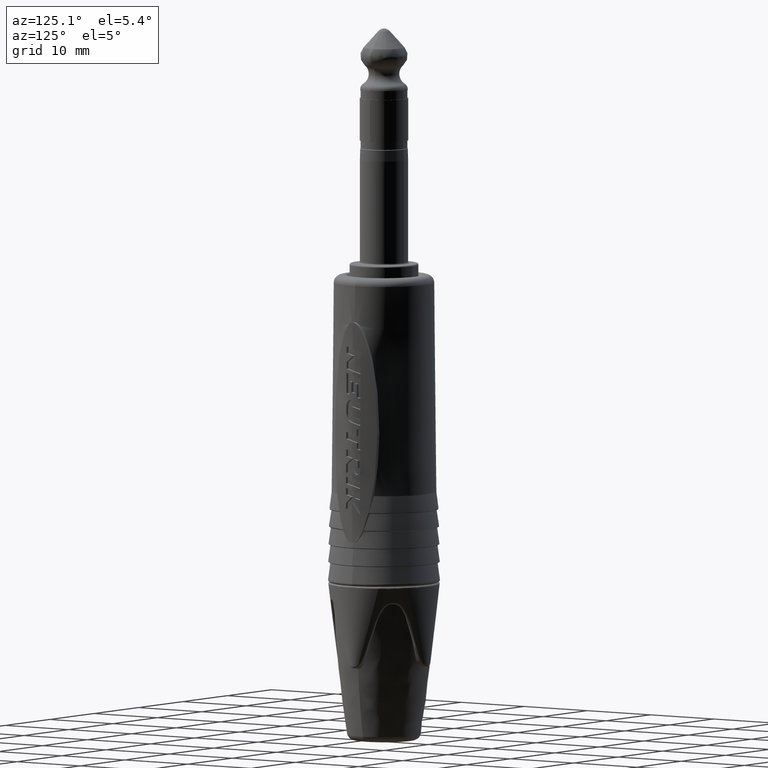
[diagram: clean part render]
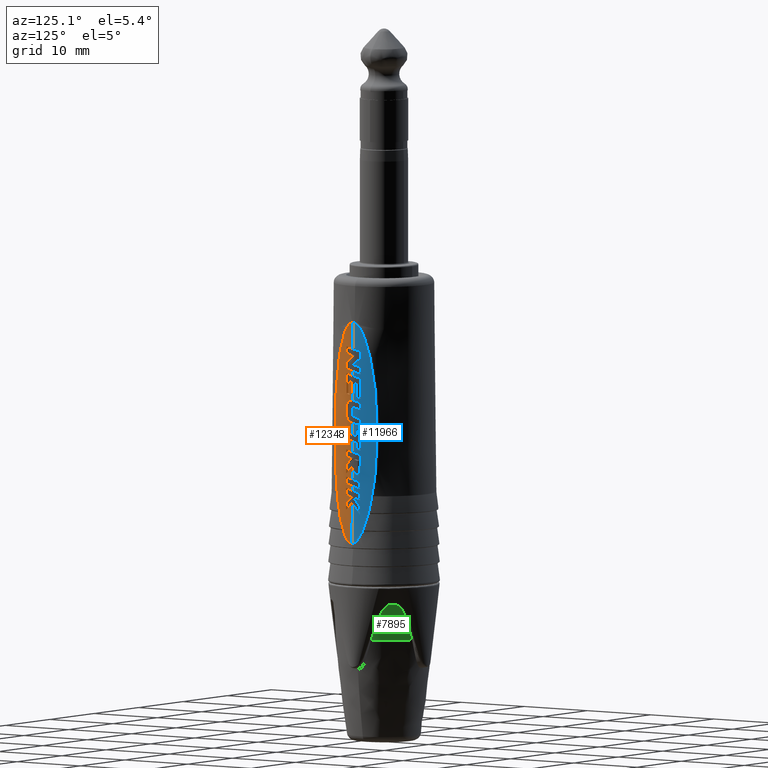
[diagram: same view with three faces highlighted in distinct colors, each labeled with its STEP entity id]
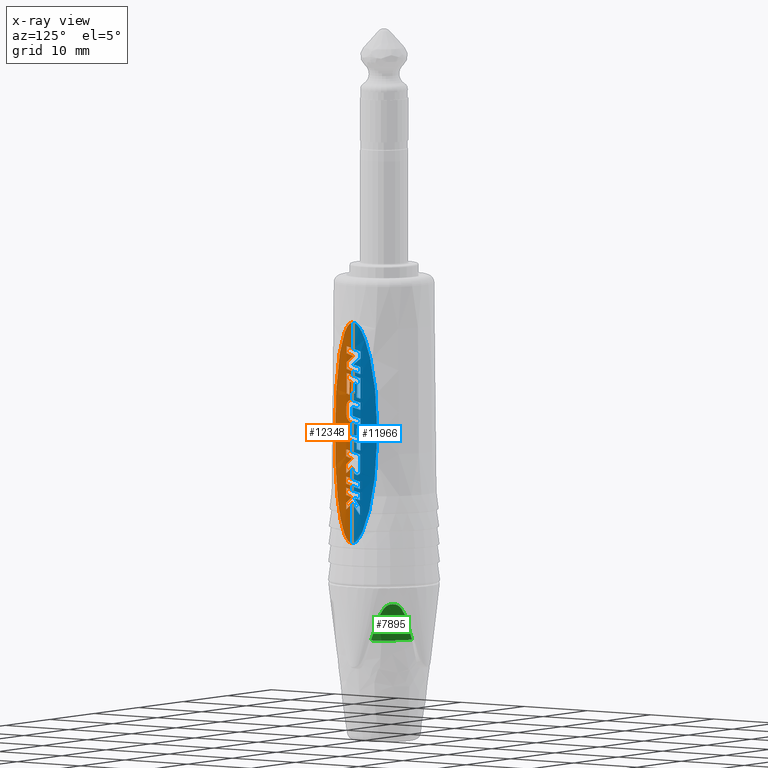
[diagram: x-ray of the same camera — body ghosted, the three highlighted faces saturated]
A machine part, auxiliary view with three faces highlighted in distinct colors.
The next image is the same camera in x-ray (body ghosted, the three faces saturated) — at least one of them is partly hidden behind the body in this view.
Their STEP definitions:

[orange] entity #12348 — the highlighted face is a SurfaceOfExtrusion surface.
#2628=DIRECTION('',(7.561829041237E-3,6.678345772028E-6,-9.999714089398E-1));
#2629=VECTOR('',#2628,3.359876884293E0);
#2630=CARTESIAN_POINT('',(6.986178654017E0,3.133850346082E-10,
-7.249792611512E0));
#2631=LINE('',#2630,#2629);
#2632=CARTESIAN_POINT('',(6.986178654017E0,3.133850346082E-10,
-7.249792611512E0));
#2637=DIRECTION('',(7.520859032716E-3,1.504708403019E-11,-9.999717179398E-1));
#2638=VECTOR('',#2637,5.207214038769E0);
#2639=CARTESIAN_POINT('',(7.162602533508E0,7.834385555360E-11,
-3.068876823880E1));
#2640=LINE('',#2639,#2638);
#2665=DIRECTION('',(7.520859014530E-3,8.313864587313E-5,-9.999717144838E-1));
#2666=VECTOR('',#2665,5.466517228822E-1);
#2667=CARTESIAN_POINT('',(7.145927450624E0,-2.300915103289E-5,
-2.847165301235E1));
#2668=LINE('',#2667,#2666);
#2683=DIRECTION('',(7.520884149553E-3,-1.960762713805E-4,-9.999716985274E-1));
#2684=VECTOR('',#2683,1.310804309774E0);
#2685=CARTESIAN_POINT('',(7.129217101715E0,2.794563545422E-4,
-2.624985319881E1));
#2686=LINE('',#2685,#2684);
#2708=DIRECTION('',(7.520858999626E-3,3.911452347715E-5,-9.999717171750E-1));
#2709=VECTOR('',#2708,1.351635421960E0);
#2710=CARTESIAN_POINT('',(7.102186102466E0,-3.042984247563E-5,
-2.265581323744E1));
#2711=LINE('',#2710,#2709);
#2736=DIRECTION('',(7.520859023E-3,-6.482240770492E-6,-9.999717179188E-1));
#2737=VECTOR('',#2736,1.470658209505E0);
#2738=CARTESIAN_POINT('',(7.084273515898E0,8.913687804708E-6,
-2.027415975889E1));
#2739=LINE('',#2738,#2737);
#2777=DIRECTION('',(7.520852293801E-3,1.313462194093E-4,-9.999717093643E-1));
#2778=VECTOR('',#2777,9.586025725962E-1);
#2779=CARTESIAN_POINT('',(7.054583424384E0,-4.882983635504E-7,
-1.632657189259E1));
#2780=LINE('',#2779,#2778);
#2805=DIRECTION('',(7.520859014528E-3,8.313864587916E-5,-9.999717144838E-1));
#2806=VECTOR('',#2805,5.466517228822E-1);
#2807=CARTESIAN_POINT('',(7.033692329787E0,-2.300915103800E-5,
-1.354889670101E1));
#2808=LINE('',#2807,#2806);
#2823=CARTESIAN_POINT('',(7.018437368330E0,-3.341103334579E-5,
-1.152060046603E1));
#2824=CARTESIAN_POINT('',(7.018492738689E0,-4.639982706944E-5,
-1.152796249651E1));
#2825=CARTESIAN_POINT('',(7.018052900380E0,-1.583162900311E-5,
-1.154269580680E1));
#2826=CARTESIAN_POINT('',(7.018218991615E0,-8.569162779246E-6,
-1.156477926052E1));
#2827=CARTESIAN_POINT('',(7.018880495796E0,-1.393585834825E-5,
-1.157951857900E1));
#2828=CARTESIAN_POINT('',(7.018935826615E0,-1.021162206282E-5,
-1.158687535221E1));
#3089=DIRECTION('',(7.520859032724E-3,0.E0,-9.999717179398E-1));
#3090=VECTOR('',#3089,8.800248889169E-1);
#3091=CARTESIAN_POINT('',(6.950337496001E0,-1.038570679684E0,
-1.239061786539E1));
#3092=LINE('',#3091,#3090);
#3101=CARTESIAN_POINT('',(7.033692329787E0,-2.300915103800E-5,
-1.354889670101E1));
#3102=CARTESIAN_POINT('',(7.033458281430E0,-1.156277747486E-1,
-1.351792049742E1));
#3103=CARTESIAN_POINT('',(7.028043312841E0,-3.466822836254E-1,
-1.345600841690E1));
#3104=CARTESIAN_POINT('',(7.001999545292E0,-6.940530508628E-1,
-1.336293119594E1));
#3105=CARTESIAN_POINT('',(6.973837138931E0,-9.238957323180E-1,
-1.330134492493E1));
#3106=CARTESIAN_POINT('',(6.956956039136E0,-1.038570679684E0,
-1.327061786539E1));
#3108=CARTESIAN_POINT('',(6.961067251170E0,-1.038570679684E0,
-1.381724368865E1));
#3109=CARTESIAN_POINT('',(6.977948416465E0,-9.238952873724E-1,
-1.384797086741E1));
#3110=CARTESIAN_POINT('',(7.006111055419E0,-6.940461688011E-1,
-1.390955863119E1));
#3111=CARTESIAN_POINT('',(7.032154180560E0,-3.466989408236E-1,
-1.400263058907E1));
#3112=CARTESIAN_POINT('',(7.037570645569E0,-1.155825806197E-1,
-1.406455668999E1));
#3113=CARTESIAN_POINT('',(7.037803620325E0,2.243873296994E-5,
-1.409553296156E1));
#3115=CARTESIAN_POINT('',(7.038930180499E0,-5.108171782835E-1,
-1.659865481315E1));
#3116=CARTESIAN_POINT('',(7.034633640869E0,-5.697202806703E-1,
-1.658287177443E1));
#3117=CARTESIAN_POINT('',(7.024605775514E0,-6.873523094461E-1,
-1.655135236732E1));
#3118=CARTESIAN_POINT('',(7.005249373104E0,-8.634287109061E-1,
-1.650417283774E1));
#3119=CARTESIAN_POINT('',(6.989506018758E0,-9.802645899485E-1,
-1.647286675831E1));
#3120=CARTESIAN_POINT('',(6.980922880574E0,-1.038570679684E0,
-1.645724368865E1));
#3122=CARTESIAN_POINT('',(7.041806719613E0,-2.026939289835E-1,
-1.495225922773E1));
#3123=CARTESIAN_POINT('',(7.040774435160E0,-2.369227235862E-1,
-1.494308764986E1));
#3124=CARTESIAN_POINT('',(7.038222291154E0,-3.053854449739E-1,
-1.492474311895E1));
#3125=CARTESIAN_POINT('',(7.032928128190E0,-4.081246273314E-1,
-1.489721423801E1));
#3126=CARTESIAN_POINT('',(7.028423336794E0,-4.765879485005E-1,
-1.487886954639E1));
#3127=CARTESIAN_POINT('',(7.025926571151E0,-5.108171782835E-1,
-1.486969785191E1));
#3129=CARTESIAN_POINT('',(7.054583424384E0,-4.882983635504E-7,
-1.632657189259E1));
#3130=CARTESIAN_POINT('',(7.054538083801E0,-2.249529559859E-2,
-1.632054442714E1));
#3131=CARTESIAN_POINT('',(7.054842044579E0,-6.749937363584E-2,
-1.630848397647E1));
#3132=CARTESIAN_POINT('',(7.053507319116E0,-1.350721989370E-1,
-1.629037856517E1));
#3133=CARTESIAN_POINT('',(7.052414486511E0,-1.801478720650E-1,
-1.627830042547E1));
#3134=CARTESIAN_POINT('',(7.051734534316E0,-2.026939289835E-1,
-1.627225922773E1));
#3136=CARTESIAN_POINT('',(6.993659545953E0,-1.038570679684E0,-1.815070784E1));
#3137=CARTESIAN_POINT('',(6.993107893790E0,-1.038570679684E0,
-1.807736029305E1));
#3138=CARTESIAN_POINT('',(6.994667990328E0,-1.020465823953E0,
-1.792905439628E1));
#3139=CARTESIAN_POINT('',(7.005148677782E0,-9.332932351287E-1,
-1.771271700842E1));
#3140=CARTESIAN_POINT('',(7.020579609731E0,-7.965844785858E-1,
-1.753020698735E1));
#3141=CARTESIAN_POINT('',(7.037721833518E0,-6.136975807953E-1,
-1.738619435362E1));
#3142=CARTESIAN_POINT('',(7.051526850171E0,-4.113389406469E-1,
-1.729855536932E1));
#3143=CARTESIAN_POINT('',(7.060497942853E0,-1.991121798109E-1,
-1.726338357896E1));
#3144=CARTESIAN_POINT('',(7.061703759454E0,-6.443715300783E-2,
-1.727329088527E1));
#3145=CARTESIAN_POINT('',(7.061792932741E0,1.254205254630E-4,
-1.728514734571E1));
#3147=CARTESIAN_POINT('',(7.080774628957E0,-2.232716292963E-1,
-2.021432823405E1));
#3148=CARTESIAN_POINT('',(7.077715906677E0,-3.159242860237E-1,
-2.018950202950E1));
#3149=CARTESIAN_POINT('',(7.067965776697E0,-4.947481349895E-1,
-2.011536544215E1));
#3150=CARTESIAN_POINT('',(7.046672968289E0,-7.247853267844E-1,
-1.993924900253E1));
#3151=CARTESIAN_POINT('',(7.024225131620E0,-9.030140195306E-1,
-1.970682719138E1));
#3152=CARTESIAN_POINT('',(7.007070781817E0,-1.013380911633E0,
-1.943904650035E1));
#3153=CARTESIAN_POINT('',(7.001908383281E0,-1.038570679684E0,
-1.924747138764E1));
#3154=CARTESIAN_POINT('',(7.001188905806E0,-1.038570679684E0,
-1.915180982513E1));
#3156=CARTESIAN_POINT('',(7.084273515898E0,8.913687804708E-6,
-2.027415975889E1));
#3157=CARTESIAN_POINT('',(7.084223545897E0,-2.478175336139E-2,
-2.026751711968E1));
#3158=CARTESIAN_POINT('',(7.084473314386E0,-7.434505021100E-2,
-2.025423127160E1));
#3159=CARTESIAN_POINT('',(7.082922029436E0,-1.487826810021E-1,
-2.023428797874E1));
#3160=CARTESIAN_POINT('',(7.081594539609E0,-1.984354744638E-1,
-2.022098306168E1));
#3161=CARTESIAN_POINT('',(7.080774628957E0,-2.232716292963E-1,
-2.021432823405E1));
#3163=CARTESIAN_POINT('',(7.018597821592E0,-1.038570679684E0,
-2.146649533516E1));
#3164=CARTESIAN_POINT('',(7.035478986891E0,-9.238952873483E-1,
-2.149722251393E1));
#3165=CARTESIAN_POINT('',(7.063641620709E0,-6.940477059592E-1,
-2.155880959188E1));
#3166=CARTESIAN_POINT('',(7.089684768983E0,-3.466935603646E-1,
-2.165188463606E1));
#3167=CARTESIAN_POINT('',(7.095101177441E0,-1.155941096523E-1,
-2.171380319278E1));
#3168=CARTESIAN_POINT('',(7.095334128963E0,-6.194728004069E-7,
-2.174477637512E1));
#3170=CARTESIAN_POINT('',(7.102186102466E0,-3.042984247563E-5,
-2.265581323744E1));
#3171=CARTESIAN_POINT('',(7.101952076645E0,-1.156240644198E-1,
-2.262484001640E1));
#3172=CARTESIAN_POINT('',(7.096537118760E0,-3.466840151121E-1,
-2.256292938723E1));
#3173=CARTESIAN_POINT('',(7.070493346832E0,-6.940525561523E-1,
-2.246985157253E1));
#3174=CARTESIAN_POINT('',(7.042330941444E0,-9.238957323180E-1,
-2.240826543346E1));
#3175=CARTESIAN_POINT('',(7.025449841649E0,-1.038570679684E0,
-2.237753837392E1));
#3177=CARTESIAN_POINT('',(7.035615192739E0,-1.038570679684E0,
-2.372912115842E1));
#3178=CARTESIAN_POINT('',(7.052496358034E0,-9.238952873724E-1,
-2.375984833718E1));
#3179=CARTESIAN_POINT('',(7.080658996988E0,-6.940461688011E-1,
-2.382143610096E1));
#3180=CARTESIAN_POINT('',(7.106702122129E0,-3.466989408236E-1,
-2.391450805885E1));
#3181=CARTESIAN_POINT('',(7.112118587138E0,-1.155825806197E-1,
-2.397643415975E1));
#3182=CARTESIAN_POINT('',(7.112351561894E0,2.243873296916E-5,
-2.400741043133E1));
#3184=CARTESIAN_POINT('',(7.118662725548E0,-1.035544798357E-1,
-2.489070103284E1));
#3185=CARTESIAN_POINT('',(7.116954032892E0,-2.077308570680E-1,
-2.486278705669E1));
#3186=CARTESIAN_POINT('',(7.109032625310E0,-4.159035178300E-1,
-2.480700736035E1));
#3187=CARTESIAN_POINT('',(7.083564561647E0,-7.284588303386E-1,
-2.472325841677E1));
#3188=CARTESIAN_POINT('',(7.057661684954E0,-9.353531573544E-1,
-2.466782124893E1));
#3189=CARTESIAN_POINT('',(7.042467212795E0,-1.038570679684E0,
-2.464016419718E1));
#3191=CARTESIAN_POINT('',(7.050506914792E0,-1.038570679684E0,
-2.570912115842E1));
#3192=CARTESIAN_POINT('',(7.064768465989E0,-9.356807599997E-1,
-2.561906156266E1));
#3193=CARTESIAN_POINT('',(7.088862426192E0,-7.292236693804E-1,
-2.543834957279E1));
#3194=CARTESIAN_POINT('',(7.111693218429E0,-4.165033216605E-1,
-2.516462530331E1));
#3195=CARTESIAN_POINT('',(7.117847789373E0,-2.079871821162E-1,
-2.498211102694E1));
#3196=CARTESIAN_POINT('',(7.118662725548E0,-1.035544798357E-1,
-2.489070103284E1));
#3198=CARTESIAN_POINT('',(7.127458545079E0,-1.035544798357E-1,
-2.606019121071E1));
#3199=CARTESIAN_POINT('',(7.126643609156E0,-2.079871498677E-1,
-2.615160117658E1));
#3200=CARTESIAN_POINT('',(7.120489041314E0,-4.165032464023E-1,
-2.633411541531E1));
#3201=CARTESIAN_POINT('',(7.097658253585E0,-7.292235912025E-1,
-2.660783968223E1));
#3202=CARTESIAN_POINT('',(7.073564290154E0,-9.356807265736E-1,
-2.678855171127E1));
#3203=CARTESIAN_POINT('',(7.059302734324E0,-1.038570679684E0,
-2.687861133629E1));
#3205=CARTESIAN_POINT('',(7.129217101715E0,2.794563545422E-4,
-2.624985319881E1));
#3206=CARTESIAN_POINT('',(7.129050837537E0,-1.088325942721E-2,
-2.622775099074E1));
#3207=CARTESIAN_POINT('',(7.129263019062E0,-3.363265988464E-2,
-2.618228738492E1));
#3208=CARTESIAN_POINT('',(7.128307930350E0,-6.760723932680E-2,
-2.611995728631E1));
#3209=CARTESIAN_POINT('',(7.127780966322E0,-9.132834705551E-2,
-2.607967355163E1));
#3210=CARTESIAN_POINT('',(7.127458545079E0,-1.035544798357E-1,
-2.606019121071E1));
#3212=CARTESIAN_POINT('',(7.062339139917E0,-1.038570679684E0,
-2.728233113798E1));
#3213=CARTESIAN_POINT('',(7.079220305212E0,-9.238952873724E-1,
-2.731305831674E1));
#3214=CARTESIAN_POINT('',(7.107382944166E0,-6.940461688011E-1,
-2.737464608052E1));
#3215=CARTESIAN_POINT('',(7.133426069307E0,-3.466989408236E-1,
-2.746771803841E1));
#3216=CARTESIAN_POINT('',(7.138842534316E0,-1.155825806197E-1,
-2.752964413931E1));
#3217=CARTESIAN_POINT('',(7.139075509072E0,2.243873297219E-5,
-2.756062041089E1));
#3219=CARTESIAN_POINT('',(7.145927450624E0,-2.300915103289E-5,
-2.847165301235E1));
#3220=CARTESIAN_POINT('',(7.145693402268E0,-1.156277747486E-1,
-2.844067680877E1));
#3221=CARTESIAN_POINT('',(7.140278433679E0,-3.466822836254E-1,
-2.837876472826E1));
#3222=CARTESIAN_POINT('',(7.114234666130E0,-6.940530508628E-1,
-2.828568750730E1));
#3223=CARTESIAN_POINT('',(7.086072259769E0,-9.238957323180E-1,
-2.822410123628E1));
#3224=CARTESIAN_POINT('',(7.069191159974E0,-1.038570679684E0,
-2.819337417674E1));
#3226=CARTESIAN_POINT('',(7.073302372008E0,-1.038570679684E0,-2.874E1));
#3227=CARTESIAN_POINT('',(7.090183537302E0,-9.238952873724E-1,
-2.877072717876E1));
#3228=CARTESIAN_POINT('',(7.118346176257E0,-6.940461688011E-1,
-2.883231494254E1));
#3229=CARTESIAN_POINT('',(7.144389301398E0,-3.466989408236E-1,
-2.892538690043E1));
#3230=CARTESIAN_POINT('',(7.149805766406E0,-1.155825806197E-1,
-2.898731300133E1));
#3231=CARTESIAN_POINT('',(7.150038741162E0,2.243873297175E-5,
-2.901828927291E1));
#3233=CARTESIAN_POINT('',(7.156349904816E0,-1.035544798357E-1,
-2.990157987442E1));
#3234=CARTESIAN_POINT('',(7.154641212160E0,-2.077308570680E-1,
-2.987366589827E1));
#3235=CARTESIAN_POINT('',(7.146719804579E0,-4.159035178300E-1,
-2.981788620193E1));
#3236=CARTESIAN_POINT('',(7.121251740916E0,-7.284588303386E-1,
-2.973413725836E1));
#3237=CARTESIAN_POINT('',(7.095348864223E0,-9.353531573544E-1,
-2.967870009051E1));
#3238=CARTESIAN_POINT('',(7.080154392064E0,-1.038570679684E0,
-2.965104303876E1));
#3240=CARTESIAN_POINT('',(7.088208889389E0,-1.038570679684E0,
-3.072196718342E1));
#3241=CARTESIAN_POINT('',(7.102468684963E0,-9.356816801938E-1,
-3.063169192462E1));
#3242=CARTESIAN_POINT('',(7.126559295490E0,-7.292258119537E-1,
-3.045054664158E1));
#3243=CARTESIAN_POINT('',(7.149385283334E0,-4.165049288974E-1,
-3.017616396911E1));
#3244=CARTESIAN_POINT('',(7.155536615800E0,-2.079878682465E-1,
-2.999321018682E1));
#3245=CARTESIAN_POINT('',(7.156349904816E0,-1.035544798357E-1,
-2.990157987442E1));
#3247=CARTESIAN_POINT('',(7.162602533508E0,7.834385555360E-11,
-3.068876823880E1));
#3248=CARTESIAN_POINT('',(7.163367124249E0,-1.158642633708E-1,
-3.079042805102E1));
#3249=CARTESIAN_POINT('',(7.159921669100E0,-3.472978718979E-1,
-3.099346734982E1));
#3250=CARTESIAN_POINT('',(7.136806994015E0,-6.949272587303E-1,
-3.129848771761E1));
#3251=CARTESIAN_POINT('',(7.110653807246E0,-9.242715560555E-1,
-3.149971344831E1));
#3252=CARTESIAN_POINT('',(7.094812637196E0,-1.038570679684E0,-3.16E1));
#3254=CARTESIAN_POINT('',(6.270589905446E0,-3.35E0,-2.155283844344E1));
#3255=CARTESIAN_POINT('',(6.266019117007E0,-3.35E0,-2.094510744510E1));
#3256=CARTESIAN_POINT('',(6.266731229803E0,-3.332026396740E0,
-1.978410380439E1));
#3257=CARTESIAN_POINT('',(6.289709523632E0,-3.264509485930E0,
-1.821187199158E1));
#3258=CARTESIAN_POINT('',(6.328104066854E0,-3.166084494560E0,
-1.679136345150E1));
#3259=CARTESIAN_POINT('',(6.376505966695E0,-3.044569922586E0,
-1.551669122267E1));
#3260=CARTESIAN_POINT('',(6.430741840948E0,-2.905810769746E0,
-1.437494551697E1));
#3261=CARTESIAN_POINT('',(6.487698026876E0,-2.754215209971E0,
-1.335417935187E1));
#3262=CARTESIAN_POINT('',(6.545120574578E0,-2.593042508192E0,
-1.244261657894E1));
#3263=CARTESIAN_POINT('',(6.601419765690E0,-2.424654677809E0,
-1.162943922712E1));
#3264=CARTESIAN_POINT('',(6.655503232358E0,-2.250683761196E0,
-1.090479299145E1));
#3265=CARTESIAN_POINT('',(6.706652555408E0,-2.072165196730E0,
-1.025991652742E1));
#3266=CARTESIAN_POINT('',(6.754413883931E0,-1.889629895996E0,
-9.687154347044E0));
#3267=CARTESIAN_POINT('',(6.798507545922E0,-1.703118961817E0,
-9.179887355888E0));
#3268=CARTESIAN_POINT('',(6.838729018380E0,-1.512347036437E0,
-8.732919648225E0));
#3269=CARTESIAN_POINT('',(6.874933012574E0,-1.316517203977E0,
-8.342041407562E0));
#3270=CARTESIAN_POINT('',(6.906970349566E0,-1.114238802579E0,
-8.004282569308E0));
#3271=CARTESIAN_POINT('',(6.934591826286E0,-9.035798975948E-1,
-7.718629357580E0));
#3272=CARTESIAN_POINT('',(6.957320577633E0,-6.830696260737E-1,
-7.487593391184E0));
#3273=CARTESIAN_POINT('',(6.974208735071E0,-4.529788737171E-1,
-7.317382528026E0));
#3274=CARTESIAN_POINT('',(6.984515985477E0,-2.200891022105E-1,
-7.217317848249E0));
#3275=CARTESIAN_POINT('',(6.985922706655E0,-7.257498102060E-2,
-7.197458374120E0));
#3276=CARTESIAN_POINT('',(6.985922706652E0,1.566951695757E-10,
-7.197458374120E0));
#3278=CARTESIAN_POINT('',(6.934849099461E0,-1.038570679684E0,
-1.033128416044E1));
#3279=CARTESIAN_POINT('',(6.951730264756E0,-9.238952873724E-1,
-1.036201133921E1));
#3280=CARTESIAN_POINT('',(6.979892903710E0,-6.940461688011E-1,
-1.042359910299E1));
#3281=CARTESIAN_POINT('',(7.005936028851E0,-3.466989408236E-1,
-1.051667106087E1));
#3282=CARTESIAN_POINT('',(7.011352493860E0,-1.155825806197E-1,
-1.057859716179E1));
#3283=CARTESIAN_POINT('',(7.011585468616E0,2.243873296979E-5,
-1.060957343336E1));
#3285=CARTESIAN_POINT('',(7.018437368330E0,-3.341103334579E-5,
-1.152060046603E1));
#3286=CARTESIAN_POINT('',(7.018203351563E0,-1.156225738312E-1,
-1.148962844321E1));
#3287=CARTESIAN_POINT('',(7.012788398006E0,-3.466847107201E-1,
-1.142771839846E1));
#3288=CARTESIAN_POINT('',(6.986744624308E0,-6.940523574072E-1,
-1.133464034469E1));
#3289=CARTESIAN_POINT('',(6.958582219313E0,-9.238957323180E-1,
-1.127305425874E1));
#3290=CARTESIAN_POINT('',(6.941701119518E0,-1.038570679684E0,
-1.124232719921E1));
#3292=CARTESIAN_POINT('',(6.950337496001E0,-1.038570679684E0,
-1.239061786539E1));
#3293=CARTESIAN_POINT('',(6.966274314736E0,-9.242236476980E-1,
-1.230212387852E1));
#3294=CARTESIAN_POINT('',(6.992609225660E0,-6.948156033362E-1,
-1.212458426625E1));
#3295=CARTESIAN_POINT('',(7.015984923612E0,-3.472657016676E-1,
-1.185560878665E1));
#3296=CARTESIAN_POINT('',(7.019610060199E0,-1.158457392266E-1,
-1.167652129649E1));
#3297=CARTESIAN_POINT('',(7.018935826615E0,-1.021162206282E-5,
-1.158687535221E1));
#3651=DIRECTION('',(7.520859032724E-3,0.E0,-9.999717179398E-1));
#3652=VECTOR('',#3651,9.110688056637E-1);
#3653=CARTESIAN_POINT('',(6.934849099461E0,-1.038570679684E0,
-1.033128416044E1));
#3654=LINE('',#3653,#3652);
#3707=DIRECTION('',(7.520859032722E-3,0.E0,-9.999717179398E-1));
#3708=VECTOR('',#3707,1.001130299150E0);
#3709=CARTESIAN_POINT('',(6.993659545953E0,-1.038570679684E0,-1.815070784E1));
#3710=LINE('',#3709,#3708);
#3815=DIRECTION('',(7.520859032722E-3,0.E0,-9.999717179398E-1));
#3816=VECTOR('',#3815,9.110688056637E-1);
#3817=CARTESIAN_POINT('',(7.018597821592E0,-1.038570679684E0,
-2.146649533516E1));
#3818=LINE('',#3817,#3816);
#3851=DIRECTION('',(7.520859032725E-3,0.E0,-9.999717179398E-1));
#3852=VECTOR('',#3851,1.169523254396E0);
#3853=CARTESIAN_POINT('',(7.050506914792E0,-1.038570679684E0,
-2.570912115842E1));
#3854=LINE('',#3853,#3852);
#3871=DIRECTION('',(7.520859032725E-3,0.E0,-9.999717179398E-1));
#3872=VECTOR('',#3871,9.110688056637E-1);
#3873=CARTESIAN_POINT('',(7.035615192739E0,-1.038570679684E0,
-2.372912115842E1));
#3874=LINE('',#3873,#3872);
#3935=DIRECTION('',(7.520859032722E-3,0.E0,-9.999717179398E-1));
#3936=VECTOR('',#3935,9.110688056637E-1);
#3937=CARTESIAN_POINT('',(7.062339139917E0,-1.038570679684E0,
-2.728233113798E1));
#3938=LINE('',#3937,#3936);
#3955=DIRECTION('',(7.520859032721E-3,0.E0,-9.999717179398E-1));
#3956=VECTOR('',#3955,8.780576498628E-1);
#3957=CARTESIAN_POINT('',(7.088208889389E0,-1.038570679684E0,
-3.072196718342E1));
#3958=LINE('',#3957,#3956);
#3975=DIRECTION('',(7.520859032723E-3,0.E0,-9.999717179398E-1));
#3976=VECTOR('',#3975,9.110688056637E-1);
#3977=CARTESIAN_POINT('',(7.073302372008E0,-1.038570679684E0,-2.874E1));
#3978=LINE('',#3977,#3976);
#4023=DIRECTION('',(7.520859032723E-3,0.E0,-9.999717179398E-1));
#4024=VECTOR('',#4023,1.320037333375E0);
#4025=CARTESIAN_POINT('',(7.041806719613E0,-2.026939289835E-1,
-1.495225922773E1));
#4026=LINE('',#4025,#4024);
#4039=DIRECTION('',(7.520859032723E-3,0.E0,-9.999717179398E-1));
#4040=VECTOR('',#4039,1.729005861087E0);
#4041=CARTESIAN_POINT('',(7.025926571151E0,-5.108171782835E-1,
-1.486969785191E1));
#4042=LINE('',#4041,#4040);
#4055=DIRECTION('',(7.520859032723E-3,0.E0,-9.999717179398E-1));
#4056=VECTOR('',#4055,2.640074666751E0);
#4057=CARTESIAN_POINT('',(6.961067251170E0,-1.038570679684E0,
-1.381724368865E1));
#4058=LINE('',#4057,#4056);
#4067=CARTESIAN_POINT('',(7.201765256246E0,1.566972427581E-10,
-3.589583500682E1));
#4068=CARTESIAN_POINT('',(7.201765256250E0,-7.746951960345E-2,
-3.589583500682E1));
#4069=CARTESIAN_POINT('',(7.199756300684E0,-2.349914405574E-1,
-3.587339821379E1));
#4070=CARTESIAN_POINT('',(7.186201274913E0,-4.847173066551E-1,
-3.575837370903E1));
#4071=CARTESIAN_POINT('',(7.164494898165E0,-7.254256503770E-1,
-3.556847113064E1));
#4072=CARTESIAN_POINT('',(7.134932027267E0,-9.598939491032E-1,
-3.530749185372E1));
#4073=CARTESIAN_POINT('',(7.098943224904E0,-1.182704078735E0,
-3.498434933980E1));
#4074=CARTESIAN_POINT('',(7.059495840440E0,-1.385073402572E0,
-3.462344654718E1));
#4075=CARTESIAN_POINT('',(7.018441949930E0,-1.566872300643E0,
-3.423943264059E1));
#4076=CARTESIAN_POINT('',(6.979231296024E0,-1.721955303771E0,
-3.386418303047E1));
#4077=CARTESIAN_POINT('',(6.937451144859E0,-1.872742178061E0,
-3.345481448187E1));
#4078=CARTESIAN_POINT('',(6.891267191898E0,-2.025006977177E0,
-3.298899884640E1));
#4079=CARTESIAN_POINT('',(6.844033545509E0,-2.168301445860E0,
-3.249638922848E1));
#4080=CARTESIAN_POINT('',(6.796269405273E0,-2.302977360255E0,
-3.197974507125E1));
#4081=CARTESIAN_POINT('',(6.747937014016E0,-2.430425246017E0,
-3.143530488376E1));
#4082=CARTESIAN_POINT('',(6.698970404984E0,-2.551785979320E0,
-3.085792676415E1));
#4083=CARTESIAN_POINT('',(6.649428012711E0,-2.667623788214E0,
-3.024250655564E1));
#4084=CARTESIAN_POINT('',(6.599475835127E0,-2.778114466472E0,
-2.958354221882E1));
#4085=CARTESIAN_POINT('',(6.549427207418E0,-2.883051146760E0,
-2.887534096806E1));
#4086=CARTESIAN_POINT('',(6.499667631264E0,-2.982036131582E0,
-2.810994434608E1));
#4087=CARTESIAN_POINT('',(6.451419093862E0,-3.073094071446E0,
-2.728912323855E1));
#4088=CARTESIAN_POINT('',(6.406050292457E0,-3.154235866733E0,
-2.641663580039E1));
#4089=CARTESIAN_POINT('',(6.364901011808E0,-3.223707509346E0,
-2.549625206128E1));
#4090=CARTESIAN_POINT('',(6.329200026211E0,-3.279989924476E0,
-2.452819944853E1));
#4091=CARTESIAN_POINT('',(6.300700161107E0,-3.320806294621E0,
-2.353161432812E1));
#4092=CARTESIAN_POINT('',(6.280575146175E0,-3.344945711882E0,
-2.252820096042E1));
#4093=CARTESIAN_POINT('',(6.273017891875E0,-3.35E0,-2.187566297053E1));
#4094=CARTESIAN_POINT('',(6.270589905446E0,-3.35E0,-2.155283844344E1));
#5328=DIRECTION('',(4.890571014504E-3,2.993986327109E-9,-9.999880410861E-1));
#5329=VECTOR('',#5328,5.233486326033E-2);
#5330=CARTESIAN_POINT('',(6.985922706652E0,1.566951695757E-10,
-7.197458374120E0));
#5331=LINE('',#5330,#5329);
#5470=CARTESIAN_POINT('',(6.270589905446E0,-3.35E0,-2.155283844344E1));
#5471=VERTEX_POINT('',#5470);
#5474=VERTEX_POINT('',#4067);
#5475=VERTEX_POINT('',#2632);
#5477=CARTESIAN_POINT('',(6.985922706652E0,1.566951695757E-10,
-7.197458374120E0));
#5478=VERTEX_POINT('',#5477);
#5479=VERTEX_POINT('',#3101);
#5480=VERTEX_POINT('',#3106);
#5483=CARTESIAN_POINT('',(6.950337496001E0,-1.038570679684E0,
-1.239061786539E1));
#5484=VERTEX_POINT('',#5483);
#5487=VERTEX_POINT('',#3297);
#5489=VERTEX_POINT('',#3285);
#5490=VERTEX_POINT('',#3290);
#5493=CARTESIAN_POINT('',(6.934849099461E0,-1.038570679684E0,
-1.033128416044E1));
#5494=VERTEX_POINT('',#5493);
#5497=VERTEX_POINT('',#3283);
#5499=VERTEX_POINT('',#3129);
#5500=VERTEX_POINT('',#3134);
#5503=CARTESIAN_POINT('',(7.041806719613E0,-2.026939289835E-1,
-1.495225922773E1));
#5504=VERTEX_POINT('',#5503);
#5507=VERTEX_POINT('',#3127);
#5509=CARTESIAN_POINT('',(7.038930180499E0,-5.108171782835E-1,
-1.659865481315E1));
#5510=VERTEX_POINT('',#5509);
#5513=VERTEX_POINT('',#3120);
#5515=CARTESIAN_POINT('',(6.961067251170E0,-1.038570679684E0,
-1.381724368865E1));
#5516=VERTEX_POINT('',#5515);
#5519=VERTEX_POINT('',#3113);
#5535=VERTEX_POINT('',#3156);
#5536=VERTEX_POINT('',#3161);
#5539=VERTEX_POINT('',#3154);
#5541=CARTESIAN_POINT('',(6.993659545953E0,-1.038570679684E0,-1.815070784E1));
#5542=VERTEX_POINT('',#5541);
#5545=VERTEX_POINT('',#3145);
#5547=VERTEX_POINT('',#3170);
#5548=VERTEX_POINT('',#3175);
#5551=CARTESIAN_POINT('',(7.018597821592E0,-1.038570679684E0,
-2.146649533516E1));
#5552=VERTEX_POINT('',#5551);
#5555=VERTEX_POINT('',#3168);
#5557=VERTEX_POINT('',#3198);
#5558=VERTEX_POINT('',#3203);
#5561=CARTESIAN_POINT('',(7.050506914792E0,-1.038570679684E0,
-2.570912115842E1));
#5562=VERTEX_POINT('',#5561);
#5565=VERTEX_POINT('',#3196);
#5567=VERTEX_POINT('',#3189);
#5569=CARTESIAN_POINT('',(7.035615192739E0,-1.038570679684E0,
-2.372912115842E1));
#5570=VERTEX_POINT('',#5569);
#5573=VERTEX_POINT('',#3182);
#5575=VERTEX_POINT('',#3205);
#5577=CARTESIAN_POINT('',(7.062339139917E0,-1.038570679684E0,
-2.728233113798E1));
#5578=CARTESIAN_POINT('',(7.069191159974E0,-1.038570679684E0,
-2.819337417674E1));
#5579=VERTEX_POINT('',#5577);
#5580=VERTEX_POINT('',#5578);
#5585=VERTEX_POINT('',#3217);
#5587=VERTEX_POINT('',#3219);
#5589=VERTEX_POINT('',#3247);
#5590=VERTEX_POINT('',#3252);
#5593=CARTESIAN_POINT('',(7.088208889389E0,-1.038570679684E0,
-3.072196718342E1));
#5594=VERTEX_POINT('',#5593);
#5597=VERTEX_POINT('',#3245);
#5599=VERTEX_POINT('',#3238);
#5601=CARTESIAN_POINT('',(7.073302372008E0,-1.038570679684E0,-2.874E1));
#5602=VERTEX_POINT('',#5601);
#5605=VERTEX_POINT('',#3231);
#12251=CARTESIAN_POINT('',(6.979208412584E0,1.144086937509E-5,
-6.249816752338E0));
#12252=CARTESIAN_POINT('',(6.979209045284E0,-3.976954958118E-1,
-6.249816747580E0));
#12253=CARTESIAN_POINT('',(6.913229039301E0,-1.194669899451E0,
-6.250312987938E0));
#12254=CARTESIAN_POINT('',(6.627224419095E0,-2.323882230778E0,
-6.252464049206E0));
#12255=CARTESIAN_POINT('',(6.324707780444E0,-3.026754278540E0,
-6.254739298549E0));
#12256=CARTESIAN_POINT('',(6.155541373384E0,-3.35E0,-6.256011611233E0));
#12258=DIRECTION('',(7.520859032723E-3,0.E0,-9.999717179398E-1));
#12259=VECTOR('',#12258,1.E0);
#12260=SURFACE_OF_LINEAR_EXTRUSION('',#12257,#12259);
#12261=ORIENTED_EDGE('',*,*,#12043,.F.);
#12262=ORIENTED_EDGE('',*,*,#11958,.T.);
#12264=ORIENTED_EDGE('',*,*,#12263,.F.);
#12266=ORIENTED_EDGE('',*,*,#12265,.T.);
#12268=ORIENTED_EDGE('',*,*,#12267,.F.);
#12270=ORIENTED_EDGE('',*,*,#12269,.F.);
#12272=ORIENTED_EDGE('',*,*,#12271,.F.);
#12274=ORIENTED_EDGE('',*,*,#12273,.T.);
#12276=ORIENTED_EDGE('',*,*,#12275,.F.);
#12277=ORIENTED_EDGE('',*,*,#11942,.T.);
#12279=ORIENTED_EDGE('',*,*,#12278,.F.);
#12281=ORIENTED_EDGE('',*,*,#12280,.T.);
#12283=ORIENTED_EDGE('',*,*,#12282,.F.);
#12285=ORIENTED_EDGE('',*,*,#12284,.F.);
#12286=ORIENTED_EDGE('',*,*,#11924,.T.);
#12288=ORIENTED_EDGE('',*,*,#12287,.F.);
#12290=ORIENTED_EDGE('',*,*,#12289,.T.);
#12292=ORIENTED_EDGE('',*,*,#12291,.F.);
#12293=ORIENTED_EDGE('',*,*,#11908,.T.);
#12295=ORIENTED_EDGE('',*,*,#12294,.F.);
#12297=ORIENTED_EDGE('',*,*,#12296,.T.);
#12299=ORIENTED_EDGE('',*,*,#12298,.F.);
#12301=ORIENTED_EDGE('',*,*,#12300,.F.);
#12303=ORIENTED_EDGE('',*,*,#12302,.T.);
#12305=ORIENTED_EDGE('',*,*,#12304,.F.);
#12307=ORIENTED_EDGE('',*,*,#12306,.F.);
#12308=ORIENTED_EDGE('',*,*,#11900,.T.);
#12310=ORIENTED_EDGE('',*,*,#12309,.F.);
#12312=ORIENTED_EDGE('',*,*,#12311,.T.);
#12314=ORIENTED_EDGE('',*,*,#12313,.F.);
#12315=ORIENTED_EDGE('',*,*,#11892,.T.);
#12317=ORIENTED_EDGE('',*,*,#12316,.F.);
#12319=ORIENTED_EDGE('',*,*,#12318,.T.);
#12321=ORIENTED_EDGE('',*,*,#12320,.F.);
#12323=ORIENTED_EDGE('',*,*,#12322,.F.);
#12325=ORIENTED_EDGE('',*,*,#12324,.T.);
#12327=ORIENTED_EDGE('',*,*,#12326,.F.);
#12328=ORIENTED_EDGE('',*,*,#11878,.T.);
#12330=ORIENTED_EDGE('',*,*,#12329,.T.);
#12332=ORIENTED_EDGE('',*,*,#12331,.T.);
#12334=ORIENTED_EDGE('',*,*,#12333,.T.);
#12335=ORIENTED_EDGE('',*,*,#11872,.T.);
#12337=ORIENTED_EDGE('',*,*,#12336,.F.);
#12339=ORIENTED_EDGE('',*,*,#12338,.T.);
#12341=ORIENTED_EDGE('',*,*,#12340,.F.);
#12342=ORIENTED_EDGE('',*,*,#11977,.T.);
#12344=ORIENTED_EDGE('',*,*,#12343,.F.);
#12345=ORIENTED_EDGE('',*,*,#12242,.T.);
#12346=EDGE_LOOP('',(#12261,#12262,#12264,#12266,#12268,#12270,#12272,#12274,
#12276,#12277,#12279,#12281,#12283,#12285,#12286,#12288,#12290,#12292,#12293,
#12295,#12297,#12299,#12301,#12303,#12305,#12307,#12308,#12310,#12312,#12314,
#12315,#12317,#12319,#12321,#12323,#12325,#12327,#12328,#12330,#12332,#12334,
#12335,#12337,#12339,#12341,#12342,#12344,#12345));
#12347=FACE_OUTER_BOUND('',#12346,.F.);
#12348=ADVANCED_FACE('',(#12347),#12260,.T.);
#2829=B_SPLINE_CURVE_WITH_KNOTS('',3,(#2823,#2824,#2825,#2826,#2827,#2828),
.UNSPECIFIED.,.F.,.F.,(4,1,1,4),(0.E0,3.333333333333E-1,6.666666666667E-1,1.E0),
.UNSPECIFIED.);
#3107=B_SPLINE_CURVE_WITH_KNOTS('',3,(#3101,#3102,#3103,#3104,#3105,#3106),
.UNSPECIFIED.,.F.,.F.,(4,1,1,4),(0.E0,3.333333333333E-1,6.666666666667E-1,1.E0),
.UNSPECIFIED.);
#3114=B_SPLINE_CURVE_WITH_KNOTS('',3,(#3108,#3109,#3110,#3111,#3112,#3113),
.UNSPECIFIED.,.F.,.F.,(4,1,1,4),(0.E0,3.333333333333E-1,6.666666666667E-1,1.E0),
.UNSPECIFIED.);
#3121=B_SPLINE_CURVE_WITH_KNOTS('',3,(#3115,#3116,#3117,#3118,#3119,#3120),
.UNSPECIFIED.,.F.,.F.,(4,1,1,4),(0.E0,3.333333333333E-1,6.666666666667E-1,1.E0),
.UNSPECIFIED.);
#3128=B_SPLINE_CURVE_WITH_KNOTS('',3,(#3122,#3123,#3124,#3125,#3126,#3127),
.UNSPECIFIED.,.F.,.F.,(4,1,1,4),(0.E0,3.333333333333E-1,6.666666666667E-1,1.E0),
.UNSPECIFIED.);
#3135=B_SPLINE_CURVE_WITH_KNOTS('',3,(#3129,#3130,#3131,#3132,#3133,#3134),
.UNSPECIFIED.,.F.,.F.,(4,1,1,4),(0.E0,3.333333333333E-1,6.666666666667E-1,1.E0),
.UNSPECIFIED.);
#3146=B_SPLINE_CURVE_WITH_KNOTS('',3,(#3136,#3137,#3138,#3139,#3140,#3141,#3142,
#3143,#3144,#3145),.UNSPECIFIED.,.F.,.F.,(4,1,1,1,1,1,1,4),(0.E0,
1.428571428571E-1,2.857142857143E-1,4.285714285714E-1,5.714285714286E-1,
7.142857142857E-1,8.571428571429E-1,1.E0),.UNSPECIFIED.);
#3155=B_SPLINE_CURVE_WITH_KNOTS('',3,(#3147,#3148,#3149,#3150,#3151,#3152,#3153,
#3154),.UNSPECIFIED.,.F.,.F.,(4,1,1,1,1,4),(0.E0,2.E-1,4.E-1,6.E-1,8.E-1,1.E0),
.UNSPECIFIED.);
#3162=B_SPLINE_CURVE_WITH_KNOTS('',3,(#3156,#3157,#3158,#3159,#3160,#3161),
.UNSPECIFIED.,.F.,.F.,(4,1,1,4),(0.E0,3.333333333333E-1,6.666666666667E-1,1.E0),
.UNSPECIFIED.);
#3169=B_SPLINE_CURVE_WITH_KNOTS('',3,(#3163,#3164,#3165,#3166,#3167,#3168),
.UNSPECIFIED.,.F.,.F.,(4,1,1,4),(0.E0,3.333333333333E-1,6.666666666667E-1,1.E0),
.UNSPECIFIED.);
#3176=B_SPLINE_CURVE_WITH_KNOTS('',3,(#3170,#3171,#3172,#3173,#3174,#3175),
.UNSPECIFIED.,.F.,.F.,(4,1,1,4),(0.E0,3.333333333333E-1,6.666666666667E-1,1.E0),
.UNSPECIFIED.);
#3183=B_SPLINE_CURVE_WITH_KNOTS('',3,(#3177,#3178,#3179,#3180,#3181,#3182),
.UNSPECIFIED.,.F.,.F.,(4,1,1,4),(0.E0,3.333333333333E-1,6.666666666667E-1,1.E0),
.UNSPECIFIED.);
#3190=B_SPLINE_CURVE_WITH_KNOTS('',3,(#3184,#3185,#3186,#3187,#3188,#3189),
.UNSPECIFIED.,.F.,.F.,(4,1,1,4),(0.E0,3.333333333333E-1,6.666666666667E-1,1.E0),
.UNSPECIFIED.);
#3197=B_SPLINE_CURVE_WITH_KNOTS('',3,(#3191,#3192,#3193,#3194,#3195,#3196),
.UNSPECIFIED.,.F.,.F.,(4,1,1,4),(0.E0,3.333333333333E-1,6.666666666667E-1,1.E0),
.UNSPECIFIED.);
#3204=B_SPLINE_CURVE_WITH_KNOTS('',3,(#3198,#3199,#3200,#3201,#3202,#3203),
.UNSPECIFIED.,.F.,.F.,(4,1,1,4),(0.E0,3.333333333333E-1,6.666666666667E-1,1.E0),
.UNSPECIFIED.);
#3211=B_SPLINE_CURVE_WITH_KNOTS('',3,(#3205,#3206,#3207,#3208,#3209,#3210),
.UNSPECIFIED.,.F.,.F.,(4,1,1,4),(0.E0,3.333333333333E-1,6.666666666667E-1,1.E0),
.UNSPECIFIED.);
#3218=B_SPLINE_CURVE_WITH_KNOTS('',3,(#3212,#3213,#3214,#3215,#3216,#3217),
.UNSPECIFIED.,.F.,.F.,(4,1,1,4),(0.E0,3.333333333333E-1,6.666666666667E-1,1.E0),
.UNSPECIFIED.);
#3225=B_SPLINE_CURVE_WITH_KNOTS('',3,(#3219,#3220,#3221,#3222,#3223,#3224),
.UNSPECIFIED.,.F.,.F.,(4,1,1,4),(0.E0,3.333333333333E-1,6.666666666667E-1,1.E0),
.UNSPECIFIED.);
#3232=B_SPLINE_CURVE_WITH_KNOTS('',3,(#3226,#3227,#3228,#3229,#3230,#3231),
.UNSPECIFIED.,.F.,.F.,(4,1,1,4),(0.E0,3.333333333333E-1,6.666666666667E-1,1.E0),
.UNSPECIFIED.);
#3239=B_SPLINE_CURVE_WITH_KNOTS('',3,(#3233,#3234,#3235,#3236,#3237,#3238),
.UNSPECIFIED.,.F.,.F.,(4,1,1,4),(0.E0,3.333333333333E-1,6.666666666667E-1,1.E0),
.UNSPECIFIED.);
#3246=B_SPLINE_CURVE_WITH_KNOTS('',3,(#3240,#3241,#3242,#3243,#3244,#3245),
.UNSPECIFIED.,.F.,.F.,(4,1,1,4),(0.E0,3.333333333333E-1,6.666666666667E-1,1.E0),
.UNSPECIFIED.);
#3253=B_SPLINE_CURVE_WITH_KNOTS('',3,(#3247,#3248,#3249,#3250,#3251,#3252),
.UNSPECIFIED.,.F.,.F.,(4,1,1,4),(0.E0,3.333333333333E-1,6.666666666667E-1,1.E0),
.UNSPECIFIED.);
#3277=B_SPLINE_CURVE_WITH_KNOTS('',3,(#3254,#3255,#3256,#3257,#3258,#3259,#3260,
#3261,#3262,#3263,#3264,#3265,#3266,#3267,#3268,#3269,#3270,#3271,#3272,#3273,
#3274,#3275,#3276),.UNSPECIFIED.,.F.,.F.,(4,1,1,1,1,1,1,1,1,1,1,1,1,1,1,1,1,1,1,
1,4),(0.E0,5.E-2,1.E-1,1.5E-1,2.E-1,2.5E-1,3.E-1,3.5E-1,4.E-1,4.5E-1,5.E-1,
5.5E-1,6.E-1,6.5E-1,7.E-1,7.5E-1,8.E-1,8.5E-1,9.E-1,9.5E-1,1.E0),.UNSPECIFIED.);
#3284=B_SPLINE_CURVE_WITH_KNOTS('',3,(#3278,#3279,#3280,#3281,#3282,#3283),
.UNSPECIFIED.,.F.,.F.,(4,1,1,4),(0.E0,3.333333333333E-1,6.666666666667E-1,1.E0),
.UNSPECIFIED.);
#3291=B_SPLINE_CURVE_WITH_KNOTS('',3,(#3285,#3286,#3287,#3288,#3289,#3290),
.UNSPECIFIED.,.F.,.F.,(4,1,1,4),(0.E0,3.333333333333E-1,6.666666666667E-1,1.E0),
.UNSPECIFIED.);
#3298=B_SPLINE_CURVE_WITH_KNOTS('',3,(#3292,#3293,#3294,#3295,#3296,#3297),
.UNSPECIFIED.,.F.,.F.,(4,1,1,4),(0.E0,3.333333333333E-1,6.666666666667E-1,1.E0),
.UNSPECIFIED.);
#4095=B_SPLINE_CURVE_WITH_KNOTS('',3,(#4067,#4068,#4069,#4070,#4071,#4072,#4073,
#4074,#4075,#4076,#4077,#4078,#4079,#4080,#4081,#4082,#4083,#4084,#4085,#4086,
#4087,#4088,#4089,#4090,#4091,#4092,#4093,#4094),.UNSPECIFIED.,.F.,.F.,(4,1,1,1,
1,1,1,1,1,1,1,1,1,1,1,1,1,1,1,1,1,1,1,1,1,4),(0.E0,4.E-2,8.E-2,1.2E-1,1.6E-1,
2.E-1,2.4E-1,2.8E-1,3.2E-1,3.6E-1,4.E-1,4.4E-1,4.8E-1,5.2E-1,5.6E-1,6.E-1,
6.4E-1,6.8E-1,7.2E-1,7.6E-1,8.E-1,8.4E-1,8.8E-1,9.2E-1,9.6E-1,1.E0),
.UNSPECIFIED.);
#11872=EDGE_CURVE('',#5475,#5497,#2631,.T.);
#11878=EDGE_CURVE('',#5589,#5474,#2640,.T.);
#11892=EDGE_CURVE('',#5587,#5605,#2668,.T.);
#11900=EDGE_CURVE('',#5575,#5585,#2686,.T.);
#11908=EDGE_CURVE('',#5547,#5573,#2711,.T.);
#11924=EDGE_CURVE('',#5535,#5555,#2739,.T.);
#11942=EDGE_CURVE('',#5499,#5545,#2780,.T.);
#11958=EDGE_CURVE('',#5479,#5519,#2808,.T.);
#11977=EDGE_CURVE('',#5489,#5487,#2829,.T.);
#12043=EDGE_CURVE('',#5479,#5480,#3107,.T.);
#12242=EDGE_CURVE('',#5484,#5480,#3092,.T.);
#12257=B_SPLINE_CURVE_WITH_KNOTS('',3,(#12251,#12252,#12253,#12254,#12255,
#12256),.UNSPECIFIED.,.F.,.F.,(4,1,1,4),(0.E0,3.429026840837E-1,
6.858015499630E-1,1.E0),.UNSPECIFIED.);
#12263=EDGE_CURVE('',#5516,#5519,#3114,.T.);
#12265=EDGE_CURVE('',#5516,#5513,#4058,.T.);
#12267=EDGE_CURVE('',#5510,#5513,#3121,.T.);
#12269=EDGE_CURVE('',#5507,#5510,#4042,.T.);
#12271=EDGE_CURVE('',#5504,#5507,#3128,.T.);
#12273=EDGE_CURVE('',#5504,#5500,#4026,.T.);
#12275=EDGE_CURVE('',#5499,#5500,#3135,.T.);
#12278=EDGE_CURVE('',#5542,#5545,#3146,.T.);
#12280=EDGE_CURVE('',#5542,#5539,#3710,.T.);
#12282=EDGE_CURVE('',#5536,#5539,#3155,.T.);
#12284=EDGE_CURVE('',#5535,#5536,#3162,.T.);
#12287=EDGE_CURVE('',#5552,#5555,#3169,.T.);
#12289=EDGE_CURVE('',#5552,#5548,#3818,.T.);
#12291=EDGE_CURVE('',#5547,#5548,#3176,.T.);
#12294=EDGE_CURVE('',#5570,#5573,#3183,.T.);
#12296=EDGE_CURVE('',#5570,#5567,#3874,.T.);
#12298=EDGE_CURVE('',#5565,#5567,#3190,.T.);
#12300=EDGE_CURVE('',#5562,#5565,#3197,.T.);
#12302=EDGE_CURVE('',#5562,#5558,#3854,.T.);
#12304=EDGE_CURVE('',#5557,#5558,#3204,.T.);
#12306=EDGE_CURVE('',#5575,#5557,#3211,.T.);
#12309=EDGE_CURVE('',#5579,#5585,#3218,.T.);
#12311=EDGE_CURVE('',#5579,#5580,#3938,.T.);
#12313=EDGE_CURVE('',#5587,#5580,#3225,.T.);
#12316=EDGE_CURVE('',#5602,#5605,#3232,.T.);
#12318=EDGE_CURVE('',#5602,#5599,#3978,.T.);
#12320=EDGE_CURVE('',#5597,#5599,#3239,.T.);
#12322=EDGE_CURVE('',#5594,#5597,#3246,.T.);
#12324=EDGE_CURVE('',#5594,#5590,#3958,.T.);
#12326=EDGE_CURVE('',#5589,#5590,#3253,.T.);
#12329=EDGE_CURVE('',#5474,#5471,#4095,.T.);
#12331=EDGE_CURVE('',#5471,#5478,#3277,.T.);
#12333=EDGE_CURVE('',#5478,#5475,#5331,.T.);
#12336=EDGE_CURVE('',#5494,#5497,#3284,.T.);
#12338=EDGE_CURVE('',#5494,#5490,#3654,.T.);
#12340=EDGE_CURVE('',#5489,#5490,#3291,.T.);
#12343=EDGE_CURVE('',#5484,#5487,#3298,.T.);

[blue] entity #11966 — the highlighted face is a SurfaceOfExtrusion surface.
#2542=CARTESIAN_POINT('',(6.269648002285E0,3.35E0,-2.155284552756E1));
#2543=CARTESIAN_POINT('',(6.272059161365E0,3.35E0,-2.187343269412E1));
#2544=CARTESIAN_POINT('',(6.279541678961E0,3.345004256759E0,-2.252004802868E1));
#2545=CARTESIAN_POINT('',(6.299223684588E0,3.321492291178E0,-2.350749945723E1));
#2546=CARTESIAN_POINT('',(6.327055388795E0,3.281797690530E0,-2.449009106007E1));
#2547=CARTESIAN_POINT('',(6.362190019425E0,3.226618724071E0,-2.545229476932E1));
#2548=CARTESIAN_POINT('',(6.403278196466E0,3.157471969991E0,-2.637861520231E1));
#2549=CARTESIAN_POINT('',(6.449041572501E0,3.075819140371E0,-2.726304508886E1));
#2550=CARTESIAN_POINT('',(6.497994692896E0,2.983569600810E0,-2.809782088730E1));
#2551=CARTESIAN_POINT('',(6.548467586096E0,2.883220423321E0,-2.887450532841E1));
#2552=CARTESIAN_POINT('',(6.598923547344E0,2.777416131466E0,-2.958811949878E1));
#2553=CARTESIAN_POINT('',(6.649066990395E0,2.666450614112E0,-3.024916343406E1));
#2554=CARTESIAN_POINT('',(6.698680431374E0,2.550370563628E0,-3.086506391198E1));
#2555=CARTESIAN_POINT('',(6.747732783014E0,2.428707226960E0,-3.144312039885E1));
#2556=CARTESIAN_POINT('',(6.796365676331E0,2.300348640240E0,-3.199056448710E1));
#2557=CARTESIAN_POINT('',(6.844684552183E0,2.163890762469E0,-3.251263408555E1));
#2558=CARTESIAN_POINT('',(6.892598734466E0,2.018139720922E0,-3.301159026753E1));
#2559=CARTESIAN_POINT('',(6.939353941347E0,1.863213927494E0,-3.348222053353E1));
#2560=CARTESIAN_POINT('',(6.980496256929E0,1.713877236324E0,-3.388463086711E1));
#2561=CARTESIAN_POINT('',(7.019572972011E0,1.558643993393E0,-3.425820085676E1));
#2562=CARTESIAN_POINT('',(7.061109914310E0,1.373470559274E0,-3.464622999303E1));
#2563=CARTESIAN_POINT('',(7.100671981181E0,1.168287202278E0,-3.500762790799E1));
#2564=CARTESIAN_POINT('',(7.136311893525E0,9.445354426758E-1,
-3.532693361738E1));
#2565=CARTESIAN_POINT('',(7.165017546402E0,7.122134993024E-1,
-3.558025631897E1));
#2566=CARTESIAN_POINT('',(7.185867343341E0,4.787694853797E-1,
-3.576148956450E1));
#2567=CARTESIAN_POINT('',(7.198644937804E0,2.316795816439E-1,
-3.587415854556E1));
#2568=CARTESIAN_POINT('',(7.201765256243E0,7.648248827486E-2,
-3.589583500682E1));
#2569=CARTESIAN_POINT('',(7.201765256246E0,1.566972427581E-10,
-3.589583500682E1));
#2571=CARTESIAN_POINT('',(6.980245262477E0,2.858501661901E-1,
-7.249837236976E0));
#2572=CARTESIAN_POINT('',(6.977235848449E0,3.675293351951E-1,
-7.279823807347E0));
#2573=CARTESIAN_POINT('',(6.968990112707E0,5.210304235582E-1,
-7.362151247443E0));
#2574=CARTESIAN_POINT('',(6.952877031474E0,7.191351526688E-1,
-7.524466762377E0));
#2575=CARTESIAN_POINT('',(6.934647898608E0,8.923505801214E-1,
-7.710104378726E0));
#2576=CARTESIAN_POINT('',(6.915354570321E0,1.045204473606E0,-7.908931273521E0));
#2577=CARTESIAN_POINT('',(6.894242156728E0,1.190430011818E0,-8.129364136246E0));
#2578=CARTESIAN_POINT('',(6.870686637743E0,1.333797198470E0,-8.379026841444E0));
#2579=CARTESIAN_POINT('',(6.843900439897E0,1.479772243387E0,-8.668013685525E0));
#2580=CARTESIAN_POINT('',(6.813862589453E0,1.627502421439E0,-8.999063617294E0));
#2581=CARTESIAN_POINT('',(6.780735916386E0,1.775857605526E0,-9.373365714565E0));
#2582=CARTESIAN_POINT('',(6.744083425421E0,1.926222613986E0,-9.800040901830E0));
#2583=CARTESIAN_POINT('',(6.705523078865E0,2.072075765402E0,-1.026506671910E1));
#2584=CARTESIAN_POINT('',(6.666488683222E0,2.209554044888E0,-1.075484284123E1));
#2585=CARTESIAN_POINT('',(6.627277150805E0,2.339270871163E0,-1.126897174034E1));
#2586=CARTESIAN_POINT('',(6.587963054674E0,2.462284695486E0,-1.181052381260E1));
#2587=CARTESIAN_POINT('',(6.548562724885E0,2.579589061763E0,-1.238453110536E1));
#2588=CARTESIAN_POINT('',(6.509216327339E0,2.691648413312E0,-1.299591704190E1));
#2589=CARTESIAN_POINT('',(6.470170521198E0,2.798586001092E0,-1.365006801668E1));
#2590=CARTESIAN_POINT('',(6.431811694276E0,2.900182780396E0,-1.435270408986E1));
#2591=CARTESIAN_POINT('',(6.394674581637E0,2.995926888155E0,-1.511093865161E1));
#2592=CARTESIAN_POINT('',(6.359961555539E0,3.083796778533E0,-1.592175286137E1));
#2593=CARTESIAN_POINT('',(6.328894899071E0,3.161977467107E0,-1.678182668861E1));
#2594=CARTESIAN_POINT('',(6.302680997390E0,3.228829499536E0,-1.768765624307E1));
#2595=CARTESIAN_POINT('',(6.282481646219E0,3.282901834997E0,-1.863875224252E1));
#2596=CARTESIAN_POINT('',(6.269672937169E0,3.322030603933E0,-1.961562709855E1));
#2597=CARTESIAN_POINT('',(6.265006394559E0,3.345156185129E0,-2.059803361439E1));
#2598=CARTESIAN_POINT('',(6.267271321118E0,3.35E0,-2.123684253649E1));
#2599=CARTESIAN_POINT('',(6.269648002285E0,3.35E0,-2.155284552756E1));
#2611=CARTESIAN_POINT('',(7.026303624366E0,5.927098279850E-2,
-1.265374061351E1));
#2612=CARTESIAN_POINT('',(7.024015677577E0,4.288446255443E-1,
-1.275276757263E1));
#2613=CARTESIAN_POINT('',(6.993540583658E0,7.962332509691E-1,
-1.285120905812E1));
#2614=CARTESIAN_POINT('',(6.934781091190E0,1.161429320316E0,-1.294906304998E1));
#2616=CARTESIAN_POINT('',(6.926144714706E0,1.161429320316E0,-1.180077238379E1));
#2617=CARTESIAN_POINT('',(6.987863171054E0,7.956564115652E-1,
-1.208384665709E1));
#2618=CARTESIAN_POINT('',(7.021127897175E0,4.282633765838E-1,
-1.236817475769E1));
#2619=CARTESIAN_POINT('',(7.026303624366E0,5.927098279849E-2,
-1.265374061351E1));
#2621=CARTESIAN_POINT('',(7.011585468616E0,2.243873296979E-5,
-1.060957343336E1));
#2622=CARTESIAN_POINT('',(7.011845950655E0,1.298641738280E-1,
-1.064436442143E1));
#2623=CARTESIAN_POINT('',(7.004776721448E0,3.889966148695E-1,
-1.071380009089E1));
#2624=CARTESIAN_POINT('',(6.974399827186E0,7.768782573005E-1,
-1.081773211509E1));
#2625=CARTESIAN_POINT('',(6.940110600555E0,1.033495054060E0,-1.088649250047E1));
#2626=CARTESIAN_POINT('',(6.919526171571E0,1.161429320316E0,-1.092077238379E1));
#2628=DIRECTION('',(7.561829041237E-3,6.678345772028E-6,-9.999714089398E-1));
#2629=VECTOR('',#2628,3.359876884293E0);
#2630=CARTESIAN_POINT('',(6.986178654017E0,3.133850346082E-10,
-7.249792611512E0));
#2631=LINE('',#2630,#2629);
#2632=CARTESIAN_POINT('',(6.986178654017E0,3.133850346082E-10,
-7.249792611512E0));
#2633=CARTESIAN_POINT('',(6.986178654013E0,9.530827766835E-2,
-7.249792611513E0));
#2634=CARTESIAN_POINT('',(6.984016825063E0,1.906165511232E-1,
-7.249808870783E0));
#2635=CARTESIAN_POINT('',(6.980245262477E0,2.858501661901E-1,
-7.249837236976E0));
#2637=DIRECTION('',(7.520859032716E-3,1.504708403019E-11,-9.999717179398E-1));
#2638=VECTOR('',#2637,5.207214038769E0);
#2639=CARTESIAN_POINT('',(7.162602533508E0,7.834385555360E-11,
-3.068876823880E1));
#2640=LINE('',#2639,#2638);
#2641=CARTESIAN_POINT('',(7.079489709306E0,1.161429320316E0,-3.218948822335E1));
#2642=CARTESIAN_POINT('',(7.098980014584E0,1.034204213392E0,-3.202509498166E1));
#2643=CARTESIAN_POINT('',(7.131233007848E0,7.785288574017E-1,
-3.169472739767E1));
#2644=CARTESIAN_POINT('',(7.158755730940E0,3.901353954919E-1,
-3.119285804135E1));
#2645=CARTESIAN_POINT('',(7.163869061354E0,1.303238432129E-1,
-3.085716549591E1));
#2646=CARTESIAN_POINT('',(7.162602533508E0,7.834385555360E-11,
-3.068876823880E1));
#2648=CARTESIAN_POINT('',(7.150389071885E0,3.114145931821E-1,
-3.001277050242E1));
#2649=CARTESIAN_POINT('',(7.140895839968E0,5.953407988881E-1,
-3.037964423107E1));
#2650=CARTESIAN_POINT('',(7.114694495820E0,8.786837639364E-1,
-3.074576432843E1));
#2651=CARTESIAN_POINT('',(7.071379168029E0,1.161429320316E0,-3.111111248737E1));
#2653=CARTESIAN_POINT('',(7.064831464174E0,1.161429320316E0,-3.024053126211E1));
#2654=CARTESIAN_POINT('',(7.110165995589E0,8.796707144668E-1,
-3.016503427121E1));
#2655=CARTESIAN_POINT('',(7.138668013264E0,5.963308577351E-1,
-3.008911358542E1));
#2656=CARTESIAN_POINT('',(7.150389071885E0,3.114145931821E-1,
-3.001277050242E1));
#2658=CARTESIAN_POINT('',(7.150038741162E0,2.243873297175E-5,
-2.901828927291E1));
#2659=CARTESIAN_POINT('',(7.150299223201E0,1.298641738280E-1,
-2.905308026097E1));
#2660=CARTESIAN_POINT('',(7.143229993995E0,3.889966148695E-1,
-2.912251593045E1));
#2661=CARTESIAN_POINT('',(7.112853099733E0,7.768782573005E-1,
-2.922644795464E1));
#2662=CARTESIAN_POINT('',(7.078563873101E0,1.033495054060E0,-2.929520834002E1));
#2663=CARTESIAN_POINT('',(7.057979444118E0,1.161429320316E0,-2.932948822335E1));
#2665=DIRECTION('',(7.520859014530E-3,8.313864587313E-5,-9.999717144838E-1));
#2666=VECTOR('',#2665,5.466517228822E-1);
#2667=CARTESIAN_POINT('',(7.145927450624E0,-2.300915103289E-5,
-2.847165301235E1));
#2668=LINE('',#2667,#2666);
#2669=CARTESIAN_POINT('',(7.053868232084E0,1.161429320316E0,-2.878286240009E1));
#2670=CARTESIAN_POINT('',(7.074452722731E0,1.033494670812E0,-2.874858241407E1));
#2671=CARTESIAN_POINT('',(7.108742170476E0,7.768715235247E-1,
-2.867982055913E1));
#2672=CARTESIAN_POINT('',(7.139118431850E0,3.890138576560E-1,
-2.857589391519E1));
#2673=CARTESIAN_POINT('',(7.146189117147E0,1.298192277878E-1,
-2.850644413488E1));
#2674=CARTESIAN_POINT('',(7.145927450624E0,-2.300915103289E-5,
-2.847165301235E1));
#2676=CARTESIAN_POINT('',(7.139075509072E0,2.243873297219E-5,
-2.756062041089E1));
#2677=CARTESIAN_POINT('',(7.139335991111E0,1.298641738280E-1,
-2.759541139895E1));
#2678=CARTESIAN_POINT('',(7.132266761904E0,3.889966148695E-1,
-2.766484706844E1));
#2679=CARTESIAN_POINT('',(7.101889867642E0,7.768782573005E-1,
-2.776877909262E1));
#2680=CARTESIAN_POINT('',(7.067600641011E0,1.033495054060E0,-2.783753947800E1));
#2681=CARTESIAN_POINT('',(7.047016212027E0,1.161429320316E0,-2.787181936133E1));
#2683=DIRECTION('',(7.520884149553E-3,-1.960762713805E-4,-9.999716985274E-1));
#2684=VECTOR('',#2683,1.310804309774E0);
#2685=CARTESIAN_POINT('',(7.129217101715E0,2.794563545422E-4,
-2.624985319881E1));
#2686=LINE('',#2685,#2684);
#2687=CARTESIAN_POINT('',(7.036838622686E0,1.161429320316E0,-2.651860938177E1));
#2688=CARTESIAN_POINT('',(7.036216272994E0,1.167291135804E0,-2.656283454458E1));
#2689=CARTESIAN_POINT('',(7.037647450027E0,1.162595574129E0,-2.664953113681E1));
#2690=CARTESIAN_POINT('',(7.046887861565E0,1.111411461835E0,-2.678010592291E1));
#2691=CARTESIAN_POINT('',(7.061697463080E0,1.019020004020E0,-2.689146553656E1));
#2692=CARTESIAN_POINT('',(7.080005688717E0,8.866697488335E-1,
-2.696044952285E1));
#2693=CARTESIAN_POINT('',(7.097179978231E0,7.367104501197E-1,
-2.697661465557E1));
#2694=CARTESIAN_POINT('',(7.112072995395E0,5.718855328872E-1,
-2.694823029455E1));
#2695=CARTESIAN_POINT('',(7.122916426172E0,4.000523232084E-1,
-2.685897190946E1));
#2696=CARTESIAN_POINT('',(7.128465987166E0,2.473631620704E-1,
-2.670065255804E1));
#2697=CARTESIAN_POINT('',(7.129770297316E0,1.171751978443E-1,
-2.648660543054E1));
#2698=CARTESIAN_POINT('',(7.129820914818E0,4.082629573012E-2,
-2.633013605275E1));
#2699=CARTESIAN_POINT('',(7.129217101715E0,2.794563545422E-4,
-2.624985319881E1));
#2701=CARTESIAN_POINT('',(7.112351561894E0,2.243873296916E-5,
-2.400741043133E1));
#2702=CARTESIAN_POINT('',(7.112612043933E0,1.298641738280E-1,
-2.404220141939E1));
#2703=CARTESIAN_POINT('',(7.105542814726E0,3.889966148695E-1,
-2.411163708887E1));
#2704=CARTESIAN_POINT('',(7.075165920464E0,7.768782573005E-1,
-2.421556911306E1));
#2705=CARTESIAN_POINT('',(7.040876693833E0,1.033495054060E0,-2.428432949844E1));
#2706=CARTESIAN_POINT('',(7.020292264849E0,1.161429320316E0,-2.431860938177E1));
#2708=DIRECTION('',(7.520858999626E-3,3.911452347715E-5,-9.999717171750E-1));
#2709=VECTOR('',#2708,1.351635421960E0);
#2710=CARTESIAN_POINT('',(7.102186102466E0,-3.042984247563E-5,
-2.265581323744E1));
#2711=LINE('',#2710,#2709);
#2712=CARTESIAN_POINT('',(7.075221807348E0,6.334293203165E-1,
-2.282554942367E1));
#2713=CARTESIAN_POINT('',(7.081260123233E0,5.632317944750E-1,
-2.280674005331E1));
#2714=CARTESIAN_POINT('',(7.091333228917E0,4.227106441796E-1,
-2.276908737020E1));
#2715=CARTESIAN_POINT('',(7.099942673533E0,2.114658426493E-1,
-2.271248519087E1));
#2716=CARTESIAN_POINT('',(7.102328233586E0,7.049682889949E-2,
-2.267471095946E1));
#2717=CARTESIAN_POINT('',(7.102186102466E0,-3.042984247563E-5,
-2.265581323744E1));
#2719=CARTESIAN_POINT('',(7.016181052815E0,1.161429320316E0,-2.377198355851E1));
#2720=CARTESIAN_POINT('',(7.044378880357E0,9.861770274568E-1,
-2.372502484817E1));
#2721=CARTESIAN_POINT('',(7.066072346020E0,8.101764715595E-1,
-2.367786564135E1));
#2722=CARTESIAN_POINT('',(7.081275946405E0,6.334293203165E-1,
-2.363050638491E1));
#2724=CARTESIAN_POINT('',(7.061420317E0,6.334293203165E-1,-2.099050638491E1));
#2725=CARTESIAN_POINT('',(7.046216716615E0,8.101764715595E-1,
-2.103786564135E1));
#2726=CARTESIAN_POINT('',(7.024523250952E0,9.861770274568E-1,
-2.108502484817E1));
#2727=CARTESIAN_POINT('',(6.996325423411E0,1.161429320316E0,-2.113198355851E1));
#2729=CARTESIAN_POINT('',(7.095334128963E0,-6.194728004069E-7,
-2.174477637512E1));
#2730=CARTESIAN_POINT('',(7.095476066072E0,7.052591320674E-2,
-2.176367390260E1));
#2731=CARTESIAN_POINT('',(7.093090675627E0,2.114542765206E-1,
-2.180143989821E1));
#2732=CARTESIAN_POINT('',(7.084481150171E0,4.227149197971E-1,
-2.185804523559E1));
#2733=CARTESIAN_POINT('',(7.074408085475E0,5.632320002576E-1,
-2.189569706969E1));
#2734=CARTESIAN_POINT('',(7.068369787292E0,6.334293203165E-1,
-2.191450638491E1));
#2736=DIRECTION('',(7.520859023E-3,-6.482240770492E-6,-9.999717179188E-1));
#2737=VECTOR('',#2736,1.470658209505E0);
#2738=CARTESIAN_POINT('',(7.084273515898E0,8.913687804708E-6,
-2.027415975889E1));
#2739=LINE('',#2738,#2737);
#2740=CARTESIAN_POINT('',(6.992214211377E0,1.161429320316E0,-2.058535773525E1));
#2741=CARTESIAN_POINT('',(7.012798702019E0,1.033494670843E0,-2.055107774924E1));
#2742=CARTESIAN_POINT('',(7.047088156933E0,7.768736517909E-1,
-2.048231684558E1));
#2743=CARTESIAN_POINT('',(7.077464386016E0,3.890064092413E-1,
-2.037838592097E1));
#2744=CARTESIAN_POINT('',(7.084535150255E0,1.298351893388E-1,
-2.030894660461E1));
#2745=CARTESIAN_POINT('',(7.084273515898E0,8.913687804708E-6,
-2.027415975889E1));
#2747=CARTESIAN_POINT('',(7.077421529795E0,3.269633218997E-5,
-1.936312124846E1));
#2748=CARTESIAN_POINT('',(7.077681980966E0,1.298590450479E-1,
-1.939790811376E1));
#2749=CARTESIAN_POINT('',(7.070612736268E0,3.889990083002E-1,
-1.946734175976E1));
#2750=CARTESIAN_POINT('',(7.040235848344E0,7.768775734632E-1,
-1.957127461174E1));
#2751=CARTESIAN_POINT('',(7.005946620304E0,1.033495054060E0,-1.964003481316E1));
#2752=CARTESIAN_POINT('',(6.985362191320E0,1.161429320316E0,-1.967431469649E1));
#2754=DIRECTION('',(7.520858941490E-3,1.911474977945E-5,-9.999717177578E-1));
#2755=VECTOR('',#2754,1.169951032935E0);
#2756=CARTESIAN_POINT('',(7.068622493108E0,1.033301094121E-5,
-1.819320330436E1));
#2757=LINE('',#2756,#2755);
#2758=CARTESIAN_POINT('',(6.976563184775E0,1.161429320316E0,-1.850440077401E1));
#2759=CARTESIAN_POINT('',(6.997147675417E0,1.033494670844E0,-1.847012078800E1));
#2760=CARTESIAN_POINT('',(7.031437130648E0,7.768737464159E-1,
-1.840135992655E1));
#2761=CARTESIAN_POINT('',(7.061813358302E0,3.890060780768E-1,
-1.829742881201E1));
#2762=CARTESIAN_POINT('',(7.068884126034E0,1.298358990062E-1,
-1.822798995993E1));
#2763=CARTESIAN_POINT('',(7.068622493108E0,1.033301094121E-5,
-1.819320330436E1));
#2765=CARTESIAN_POINT('',(7.061165479551E0,6.919008000670E-2,
-1.730069311287E1));
#2766=CARTESIAN_POINT('',(7.058395127166E0,4.354360703678E-1,
-1.739882843022E1));
#2767=CARTESIAN_POINT('',(7.027942098076E0,7.995182982299E-1,
-1.749638396915E1));
#2768=CARTESIAN_POINT('',(6.969711164718E0,1.161429320316E0,-1.759335773525E1));
#2770=CARTESIAN_POINT('',(7.061792932741E0,1.254205254630E-4,
-1.728514734571E1));
#2771=CARTESIAN_POINT('',(7.061803381488E0,7.689814042444E-3,
-1.728653649313E1));
#2772=CARTESIAN_POINT('',(7.061195599501E0,2.324527998656E-2,
-1.728957891985E1));
#2773=CARTESIAN_POINT('',(7.061371329606E0,4.628038759495E-2,
-1.729477663933E1));
#2774=CARTESIAN_POINT('',(7.061223088724E0,6.157403491271E-2,
-1.729865239974E1));
#2775=CARTESIAN_POINT('',(7.061165479551E0,6.919008000670E-2,
-1.730069311287E1));
#2777=DIRECTION('',(7.520852293801E-3,1.313462194093E-4,-9.999717093643E-1));
#2778=VECTOR('',#2777,9.586025725962E-1);
#2779=CARTESIAN_POINT('',(7.054583424384E0,-4.882983635504E-7,
-1.632657189259E1));
#2780=LINE('',#2779,#2778);
#2781=CARTESIAN_POINT('',(7.047496893156E0,3.253060710165E-1,
-1.641373640133E1));
#2782=CARTESIAN_POINT('',(7.049052452873E0,2.891869040656E-1,
-1.640405829972E1));
#2783=CARTESIAN_POINT('',(7.051675976879E0,2.169309983378E-1,
-1.638469753761E1));
#2784=CARTESIAN_POINT('',(7.053653185283E0,1.084820984727E-1,
-1.635563806980E1));
#2785=CARTESIAN_POINT('',(7.054656305643E0,3.616411395194E-2,
-1.633626216856E1));
#2786=CARTESIAN_POINT('',(7.054583424384E0,-4.882983635504E-7,
-1.632657189259E1));
#2788=CARTESIAN_POINT('',(7.017691236926E0,6.334293203165E-1,
-1.517629777715E1));
#2789=CARTESIAN_POINT('',(7.026514669252E0,5.308538455402E-1,
-1.514881276152E1));
#2790=CARTESIAN_POINT('',(7.033140024356E0,4.281460601344E-1,
-1.512129229337E1));
#2791=CARTESIAN_POINT('',(7.037569078454E0,3.253060710165E-1,
-1.509373640133E1));
#2793=CARTESIAN_POINT('',(6.965599952685E0,1.161429320316E0,-1.704673191200E1));
#2794=CARTESIAN_POINT('',(6.993797780226E0,9.861770274568E-1,
-1.699977320165E1));
#2795=CARTESIAN_POINT('',(7.015491245889E0,8.101764715595E-1,
-1.695261399483E1));
#2796=CARTESIAN_POINT('',(7.030694846274E0,6.334293203165E-1,
-1.690525473839E1));
#2798=CARTESIAN_POINT('',(7.037803620325E0,2.243873296994E-5,
-1.409553296156E1));
#2799=CARTESIAN_POINT('',(7.038064102364E0,1.298641738280E-1,
-1.413032394963E1));
#2800=CARTESIAN_POINT('',(7.030994873157E0,3.889966148695E-1,
-1.419975961910E1));
#2801=CARTESIAN_POINT('',(7.000617978895E0,7.768782573005E-1,
-1.430369164329E1));
#2802=CARTESIAN_POINT('',(6.966328752263E0,1.033495054060E0,-1.437245202867E1));
#2803=CARTESIAN_POINT('',(6.945744323280E0,1.161429320316E0,-1.440673191200E1));
#2805=DIRECTION('',(7.520859014528E-3,8.313864587916E-5,-9.999717144838E-1));
#2806=VECTOR('',#2805,5.466517228822E-1);
#2807=CARTESIAN_POINT('',(7.033692329787E0,-2.300915103800E-5,
-1.354889670101E1));
#2808=LINE('',#2807,#2806);
#2809=CARTESIAN_POINT('',(6.941633111246E0,1.161429320316E0,-1.386010608874E1));
#2810=CARTESIAN_POINT('',(6.962217601894E0,1.033494670812E0,-1.382582610272E1));
#2811=CARTESIAN_POINT('',(6.996507049638E0,7.768715235247E-1,
-1.375706424778E1));
#2812=CARTESIAN_POINT('',(7.026883311012E0,3.890138576560E-1,
-1.365313760383E1));
#2813=CARTESIAN_POINT('',(7.033953996310E0,1.298192277878E-1,
-1.358368782354E1));
#2814=CARTESIAN_POINT('',(7.033692329787E0,-2.300915103800E-5,
-1.354889670101E1));
#2865=DIRECTION('',(7.520859032720E-3,0.E0,-9.999717179398E-1));
#2866=VECTOR('',#2865,9.110688056637E-1);
#2867=CARTESIAN_POINT('',(6.934781091190E0,1.161429320316E0,-1.294906304998E1));
#2868=LINE('',#2867,#2866);
#3101=CARTESIAN_POINT('',(7.033692329787E0,-2.300915103800E-5,
-1.354889670101E1));
#3113=CARTESIAN_POINT('',(7.037803620325E0,2.243873296994E-5,
-1.409553296156E1));
#3129=CARTESIAN_POINT('',(7.054583424384E0,-4.882983635504E-7,
-1.632657189259E1));
#3145=CARTESIAN_POINT('',(7.061792932741E0,1.254205254630E-4,
-1.728514734571E1));
#3156=CARTESIAN_POINT('',(7.084273515898E0,8.913687804708E-6,
-2.027415975889E1));
#3168=CARTESIAN_POINT('',(7.095334128963E0,-6.194728004069E-7,
-2.174477637512E1));
#3170=CARTESIAN_POINT('',(7.102186102466E0,-3.042984247563E-5,
-2.265581323744E1));
#3182=CARTESIAN_POINT('',(7.112351561894E0,2.243873296916E-5,
-2.400741043133E1));
#3205=CARTESIAN_POINT('',(7.129217101715E0,2.794563545422E-4,
-2.624985319881E1));
#3217=CARTESIAN_POINT('',(7.139075509072E0,2.243873297219E-5,
-2.756062041089E1));
#3219=CARTESIAN_POINT('',(7.145927450624E0,-2.300915103289E-5,
-2.847165301235E1));
#3231=CARTESIAN_POINT('',(7.150038741162E0,2.243873297175E-5,
-2.901828927291E1));
#3247=CARTESIAN_POINT('',(7.162602533508E0,7.834385555360E-11,
-3.068876823880E1));
#3283=CARTESIAN_POINT('',(7.011585468616E0,2.243873296979E-5,
-1.060957343336E1));
#3299=CARTESIAN_POINT('',(7.068622493108E0,1.033301094121E-5,
-1.819320330436E1));
#3311=CARTESIAN_POINT('',(7.077421529795E0,3.269633218997E-5,
-1.936312124846E1));
#3337=DIRECTION('',(7.520859032718E-3,0.E0,-9.999717179398E-1));
#3338=VECTOR('',#3337,2.640074666751E0);
#3339=CARTESIAN_POINT('',(6.945744323280E0,1.161429320316E0,-1.440673191200E1));
#3340=LINE('',#3339,#3338);
#3353=DIRECTION('',(7.520859032718E-3,0.E0,-9.999717179398E-1));
#3354=VECTOR('',#3353,1.729005861087E0);
#3355=CARTESIAN_POINT('',(7.017691236926E0,6.334293203165E-1,
-1.517629777715E1));
#3356=LINE('',#3355,#3354);
#3369=DIRECTION('',(7.520859032718E-3,0.E0,-9.999717179398E-1));
#3370=VECTOR('',#3369,1.320037333375E0);
#3371=CARTESIAN_POINT('',(7.037569078454E0,3.253060710165E-1,
-1.509373640133E1));
#3372=LINE('',#3371,#3370);
#3667=DIRECTION('',(7.520859032719E-3,0.E0,-9.999717179398E-1));
#3668=VECTOR('',#3667,8.800248889169E-1);
#3669=CARTESIAN_POINT('',(6.919526171571E0,1.161429320316E0,-1.092077238379E1));
#3670=LINE('',#3669,#3668);
#3687=DIRECTION('',(7.520859032721E-3,0.E0,-9.999717179398E-1));
#3688=VECTOR('',#3687,9.110688056637E-1);
#3689=CARTESIAN_POINT('',(6.969711164718E0,1.161429320316E0,-1.759335773525E1));
#3690=LINE('',#3689,#3688);
#3727=DIRECTION('',(7.520859032718E-3,0.E0,-9.999717179398E-1));
#3728=VECTOR('',#3727,9.110688056637E-1);
#3729=CARTESIAN_POINT('',(6.985362191320E0,1.161429320316E0,-1.967431469649E1));
#3730=LINE('',#3729,#3728);
#3767=DIRECTION('',(7.520859032721E-3,0.E0,-9.999717179398E-1));
#3768=VECTOR('',#3767,8.049797277243E-1);
#3769=CARTESIAN_POINT('',(7.075221807348E0,6.334293203165E-1,
-2.282554942367E1));
#3770=LINE('',#3769,#3768);
#3783=DIRECTION('',(7.520859032720E-3,0.E0,-9.999717179398E-1));
#3784=VECTOR('',#3783,2.640074666751E0);
#3785=CARTESIAN_POINT('',(6.996325423411E0,1.161429320316E0,-2.113198355851E1));
#3786=LINE('',#3785,#3784);
#3799=DIRECTION('',(7.520859032720E-3,0.E0,-9.999717179398E-1));
#3800=VECTOR('',#3799,9.240261333628E-1);
#3801=CARTESIAN_POINT('',(7.061420317E0,6.334293203165E-1,-2.099050638491E1));
#3802=LINE('',#3801,#3800);
#3831=DIRECTION('',(7.520859032719E-3,0.E0,-9.999717179398E-1));
#3832=VECTOR('',#3831,2.200062222292E0);
#3833=CARTESIAN_POINT('',(7.020292264849E0,1.161429320316E0,-2.431860938177E1));
#3834=LINE('',#3833,#3832);
#3919=DIRECTION('',(7.520859032720E-3,0.E0,-9.999717179398E-1));
#3920=VECTOR('',#3919,9.110688056637E-1);
#3921=CARTESIAN_POINT('',(7.047016212027E0,1.161429320316E0,-2.787181936133E1));
#3922=LINE('',#3921,#3920);
#3991=DIRECTION('',(7.520859032719E-3,0.E0,-9.999717179398E-1));
#3992=VECTOR('',#3991,9.110688056637E-1);
#3993=CARTESIAN_POINT('',(7.057979444118E0,1.161429320316E0,-2.932948822335E1));
#3994=LINE('',#3993,#3992);
#4011=DIRECTION('',(7.520859032721E-3,0.E0,-9.999717179398E-1));
#4012=VECTOR('',#4011,1.078406235531E0);
#4013=CARTESIAN_POINT('',(7.071379168029E0,1.161429320316E0,-3.111111248737E1));
#4014=LINE('',#4013,#4012);
#4067=CARTESIAN_POINT('',(7.201765256246E0,1.566972427581E-10,
-3.589583500682E1));
#5472=CARTESIAN_POINT('',(6.269648002285E0,3.35E0,-2.155284552756E1));
#5473=VERTEX_POINT('',#5472);
#5474=VERTEX_POINT('',#4067);
#5475=VERTEX_POINT('',#2632);
#5476=VERTEX_POINT('',#2635);
#5479=VERTEX_POINT('',#3101);
#5497=VERTEX_POINT('',#3283);
#5499=VERTEX_POINT('',#3129);
#5519=VERTEX_POINT('',#3113);
#5521=VERTEX_POINT('',#3299);
#5533=VERTEX_POINT('',#3311);
#5535=VERTEX_POINT('',#3156);
#5545=VERTEX_POINT('',#3145);
#5547=VERTEX_POINT('',#3170);
#5555=VERTEX_POINT('',#3168);
#5573=VERTEX_POINT('',#3182);
#5575=VERTEX_POINT('',#3205);
#5585=VERTEX_POINT('',#3217);
#5587=VERTEX_POINT('',#3219);
#5589=VERTEX_POINT('',#3247);
#5605=VERTEX_POINT('',#3231);
#5607=VERTEX_POINT('',#2611);
#5608=VERTEX_POINT('',#2614);
#5611=CARTESIAN_POINT('',(6.941633111246E0,1.161429320316E0,-1.386010608874E1));
#5612=VERTEX_POINT('',#5611);
#5617=VERTEX_POINT('',#2626);
#5619=CARTESIAN_POINT('',(6.926144714706E0,1.161429320316E0,-1.180077238379E1));
#5620=VERTEX_POINT('',#5619);
#5623=VERTEX_POINT('',#2793);
#5624=VERTEX_POINT('',#2796);
#5627=CARTESIAN_POINT('',(7.017691236926E0,6.334293203165E-1,
-1.517629777715E1));
#5628=VERTEX_POINT('',#5627);
#5631=VERTEX_POINT('',#2791);
#5633=CARTESIAN_POINT('',(7.047496893156E0,3.253060710165E-1,
-1.641373640133E1));
#5634=VERTEX_POINT('',#5633);
#5637=VERTEX_POINT('',#2803);
#5639=VERTEX_POINT('',#2758);
#5641=VERTEX_POINT('',#2752);
#5643=CARTESIAN_POINT('',(6.992214211377E0,1.161429320316E0,-2.058535773525E1));
#5644=VERTEX_POINT('',#5643);
#5647=VERTEX_POINT('',#2775);
#5649=VERTEX_POINT('',#2768);
#5651=VERTEX_POINT('',#2712);
#5653=VERTEX_POINT('',#2734);
#5655=CARTESIAN_POINT('',(7.061420317E0,6.334293203165E-1,-2.099050638491E1));
#5656=VERTEX_POINT('',#5655);
#5659=VERTEX_POINT('',#2727);
#5661=CARTESIAN_POINT('',(7.016181052815E0,1.161429320316E0,-2.377198355851E1));
#5662=VERTEX_POINT('',#5661);
#5665=VERTEX_POINT('',#2722);
#5667=VERTEX_POINT('',#2706);
#5669=CARTESIAN_POINT('',(7.036838622686E0,1.161429320316E0,-2.651860938177E1));
#5670=VERTEX_POINT('',#5669);
#5687=VERTEX_POINT('',#2681);
#5689=CARTESIAN_POINT('',(7.053868232084E0,1.161429320316E0,-2.878286240009E1));
#5690=VERTEX_POINT('',#5689);
#5693=VERTEX_POINT('',#2641);
#5695=VERTEX_POINT('',#2663);
#5697=CARTESIAN_POINT('',(7.064831464174E0,1.161429320316E0,-3.024053126211E1));
#5698=VERTEX_POINT('',#5697);
#5701=VERTEX_POINT('',#2656);
#5703=VERTEX_POINT('',#2651);
#11856=CARTESIAN_POINT('',(-2.367807228823E-1,0.E0,-7.304117007191E0));
#11857=DIRECTION('',(7.520859032719E-3,0.E0,-9.999717179398E-1));
#11858=DIRECTION('',(-9.999717179398E-1,0.E0,-7.520859032719E-3));
#11859=AXIS2_PLACEMENT_3D('',#11856,#11857,#11858);
#11861=DIRECTION('',(7.520859032719E-3,0.E0,-9.999717179398E-1));
#11862=VECTOR('',#11861,1.E0);
#11863=SURFACE_OF_LINEAR_EXTRUSION('',#11860,#11862);
#11865=ORIENTED_EDGE('',*,*,#11864,.F.);
#11867=ORIENTED_EDGE('',*,*,#11866,.F.);
#11869=ORIENTED_EDGE('',*,*,#11868,.F.);
#11871=ORIENTED_EDGE('',*,*,#11870,.F.);
#11873=ORIENTED_EDGE('',*,*,#11872,.F.);
#11875=ORIENTED_EDGE('',*,*,#11874,.T.);
#11876=ORIENTED_EDGE('',*,*,#11845,.T.);
#11877=ORIENTED_EDGE('',*,*,#11831,.T.);
#11879=ORIENTED_EDGE('',*,*,#11878,.F.);
#11881=ORIENTED_EDGE('',*,*,#11880,.F.);
#11883=ORIENTED_EDGE('',*,*,#11882,.F.);
#11885=ORIENTED_EDGE('',*,*,#11884,.F.);
#11887=ORIENTED_EDGE('',*,*,#11886,.F.);
#11889=ORIENTED_EDGE('',*,*,#11888,.F.);
#11891=ORIENTED_EDGE('',*,*,#11890,.F.);
#11893=ORIENTED_EDGE('',*,*,#11892,.F.);
#11895=ORIENTED_EDGE('',*,*,#11894,.F.);
#11897=ORIENTED_EDGE('',*,*,#11896,.F.);
#11899=ORIENTED_EDGE('',*,*,#11898,.F.);
#11901=ORIENTED_EDGE('',*,*,#11900,.F.);
#11903=ORIENTED_EDGE('',*,*,#11902,.F.);
#11905=ORIENTED_EDGE('',*,*,#11904,.F.);
#11907=ORIENTED_EDGE('',*,*,#11906,.F.);
#11909=ORIENTED_EDGE('',*,*,#11908,.F.);
#11911=ORIENTED_EDGE('',*,*,#11910,.F.);
#11913=ORIENTED_EDGE('',*,*,#11912,.T.);
#11915=ORIENTED_EDGE('',*,*,#11914,.F.);
#11917=ORIENTED_EDGE('',*,*,#11916,.F.);
#11919=ORIENTED_EDGE('',*,*,#11918,.F.);
#11921=ORIENTED_EDGE('',*,*,#11920,.T.);
#11923=ORIENTED_EDGE('',*,*,#11922,.F.);
#11925=ORIENTED_EDGE('',*,*,#11924,.F.);
#11927=ORIENTED_EDGE('',*,*,#11926,.F.);
#11929=ORIENTED_EDGE('',*,*,#11928,.F.);
#11931=ORIENTED_EDGE('',*,*,#11930,.F.);
#11933=ORIENTED_EDGE('',*,*,#11932,.F.);
#11935=ORIENTED_EDGE('',*,*,#11934,.F.);
#11937=ORIENTED_EDGE('',*,*,#11936,.F.);
#11939=ORIENTED_EDGE('',*,*,#11938,.F.);
#11941=ORIENTED_EDGE('',*,*,#11940,.F.);
#11943=ORIENTED_EDGE('',*,*,#11942,.F.);
#11945=ORIENTED_EDGE('',*,*,#11944,.F.);
#11947=ORIENTED_EDGE('',*,*,#11946,.F.);
#11949=ORIENTED_EDGE('',*,*,#11948,.F.);
#11951=ORIENTED_EDGE('',*,*,#11950,.T.);
#11953=ORIENTED_EDGE('',*,*,#11952,.F.);
#11955=ORIENTED_EDGE('',*,*,#11954,.F.);
#11957=ORIENTED_EDGE('',*,*,#11956,.F.);
#11959=ORIENTED_EDGE('',*,*,#11958,.F.);
#11961=ORIENTED_EDGE('',*,*,#11960,.F.);
#11963=ORIENTED_EDGE('',*,*,#11962,.F.);
#11964=EDGE_LOOP('',(#11865,#11867,#11869,#11871,#11873,#11875,#11876,#11877,
#11879,#11881,#11883,#11885,#11887,#11889,#11891,#11893,#11895,#11897,#11899,
#11901,#11903,#11905,#11907,#11909,#11911,#11913,#11915,#11917,#11919,#11921,
#11923,#11925,#11927,#11929,#11931,#11933,#11935,#11937,#11939,#11941,#11943,
#11945,#11947,#11949,#11951,#11953,#11955,#11957,#11959,#11961,#11963));
#11965=FACE_OUTER_BOUND('',#11964,.F.);
#11966=ADVANCED_FACE('',(#11965),#11863,.T.);
#2570=B_SPLINE_CURVE_WITH_KNOTS('',3,(#2542,#2543,#2544,#2545,#2546,#2547,#2548,
#2549,#2550,#2551,#2552,#2553,#2554,#2555,#2556,#2557,#2558,#2559,#2560,#2561,
#2562,#2563,#2564,#2565,#2566,#2567,#2568,#2569),.UNSPECIFIED.,.F.,.F.,(4,1,1,1,
1,1,1,1,1,1,1,1,1,1,1,1,1,1,1,1,1,1,1,1,1,4),(0.E0,4.E-2,8.E-2,1.2E-1,1.6E-1,
2.E-1,2.4E-1,2.8E-1,3.2E-1,3.6E-1,4.E-1,4.4E-1,4.8E-1,5.2E-1,5.6E-1,6.E-1,
6.4E-1,6.8E-1,7.2E-1,7.6E-1,8.E-1,8.4E-1,8.8E-1,9.2E-1,9.6E-1,1.E0),
.UNSPECIFIED.);
#2600=B_SPLINE_CURVE_WITH_KNOTS('',3,(#2571,#2572,#2573,#2574,#2575,#2576,#2577,
#2578,#2579,#2580,#2581,#2582,#2583,#2584,#2585,#2586,#2587,#2588,#2589,#2590,
#2591,#2592,#2593,#2594,#2595,#2596,#2597,#2598,#2599),.UNSPECIFIED.,.F.,.F.,(4,
1,1,1,1,1,1,1,1,1,1,1,1,1,1,1,1,1,1,1,1,1,1,1,1,1,4),(0.E0,3.846153846154E-2,
7.692307692308E-2,1.153846153846E-1,1.538461538462E-1,1.923076923077E-1,
2.307692307692E-1,2.692307692308E-1,3.076923076923E-1,3.461538461538E-1,
3.846153846154E-1,4.230769230769E-1,4.615384615385E-1,5.E-1,5.384615384615E-1,
5.769230769231E-1,6.153846153846E-1,6.538461538462E-1,6.923076923077E-1,
7.307692307692E-1,7.692307692308E-1,8.076923076923E-1,8.461538461538E-1,
8.846153846154E-1,9.230769230769E-1,9.615384615385E-1,1.E0),.UNSPECIFIED.);
#2615=B_SPLINE_CURVE_WITH_KNOTS('',3,(#2611,#2612,#2613,#2614),.UNSPECIFIED.,
.F.,.F.,(4,4),(0.E0,1.E0),.UNSPECIFIED.);
#2620=B_SPLINE_CURVE_WITH_KNOTS('',3,(#2616,#2617,#2618,#2619),.UNSPECIFIED.,
.F.,.F.,(4,4),(0.E0,1.E0),.UNSPECIFIED.);
#2627=B_SPLINE_CURVE_WITH_KNOTS('',3,(#2621,#2622,#2623,#2624,#2625,#2626),
.UNSPECIFIED.,.F.,.F.,(4,1,1,4),(0.E0,3.333333333333E-1,6.666666666667E-1,1.E0),
.UNSPECIFIED.);
#2636=B_SPLINE_CURVE_WITH_KNOTS('',3,(#2632,#2633,#2634,#2635),.UNSPECIFIED.,
.F.,.F.,(4,4),(0.E0,1.E0),.UNSPECIFIED.);
#2647=B_SPLINE_CURVE_WITH_KNOTS('',3,(#2641,#2642,#2643,#2644,#2645,#2646),
.UNSPECIFIED.,.F.,.F.,(4,1,1,4),(0.E0,3.333333333333E-1,6.666666666667E-1,1.E0),
.UNSPECIFIED.);
#2652=B_SPLINE_CURVE_WITH_KNOTS('',3,(#2648,#2649,#2650,#2651),.UNSPECIFIED.,
.F.,.F.,(4,4),(0.E0,1.E0),.UNSPECIFIED.);
#2657=B_SPLINE_CURVE_WITH_KNOTS('',3,(#2653,#2654,#2655,#2656),.UNSPECIFIED.,
.F.,.F.,(4,4),(0.E0,1.E0),.UNSPECIFIED.);
#2664=B_SPLINE_CURVE_WITH_KNOTS('',3,(#2658,#2659,#2660,#2661,#2662,#2663),
.UNSPECIFIED.,.F.,.F.,(4,1,1,4),(0.E0,3.333333333333E-1,6.666666666667E-1,1.E0),
.UNSPECIFIED.);
#2675=B_SPLINE_CURVE_WITH_KNOTS('',3,(#2669,#2670,#2671,#2672,#2673,#2674),
.UNSPECIFIED.,.F.,.F.,(4,1,1,4),(0.E0,3.333333333333E-1,6.666666666667E-1,1.E0),
.UNSPECIFIED.);
#2682=B_SPLINE_CURVE_WITH_KNOTS('',3,(#2676,#2677,#2678,#2679,#2680,#2681),
.UNSPECIFIED.,.F.,.F.,(4,1,1,4),(0.E0,3.333333333333E-1,6.666666666667E-1,1.E0),
.UNSPECIFIED.);
#2700=B_SPLINE_CURVE_WITH_KNOTS('',3,(#2687,#2688,#2689,#2690,#2691,#2692,#2693,
#2694,#2695,#2696,#2697,#2698,#2699),.UNSPECIFIED.,.F.,.F.,(4,1,1,1,1,1,1,1,1,1,
4),(0.E0,1.E-1,2.E-1,3.E-1,4.E-1,5.E-1,6.E-1,7.E-1,8.E-1,9.E-1,1.E0),
.UNSPECIFIED.);
#2707=B_SPLINE_CURVE_WITH_KNOTS('',3,(#2701,#2702,#2703,#2704,#2705,#2706),
.UNSPECIFIED.,.F.,.F.,(4,1,1,4),(0.E0,3.333333333333E-1,6.666666666667E-1,1.E0),
.UNSPECIFIED.);
#2718=B_SPLINE_CURVE_WITH_KNOTS('',3,(#2712,#2713,#2714,#2715,#2716,#2717),
.UNSPECIFIED.,.F.,.F.,(4,1,1,4),(0.E0,3.333333333333E-1,6.666666666667E-1,1.E0),
.UNSPECIFIED.);
#2723=B_SPLINE_CURVE_WITH_KNOTS('',3,(#2719,#2720,#2721,#2722),.UNSPECIFIED.,
.F.,.F.,(4,4),(0.E0,1.E0),.UNSPECIFIED.);
#2728=B_SPLINE_CURVE_WITH_KNOTS('',3,(#2724,#2725,#2726,#2727),.UNSPECIFIED.,
.F.,.F.,(4,4),(0.E0,1.E0),.UNSPECIFIED.);
#2735=B_SPLINE_CURVE_WITH_KNOTS('',3,(#2729,#2730,#2731,#2732,#2733,#2734),
.UNSPECIFIED.,.F.,.F.,(4,1,1,4),(0.E0,3.333333333333E-1,6.666666666667E-1,1.E0),
.UNSPECIFIED.);
#2746=B_SPLINE_CURVE_WITH_KNOTS('',3,(#2740,#2741,#2742,#2743,#2744,#2745),
.UNSPECIFIED.,.F.,.F.,(4,1,1,4),(0.E0,3.333333333333E-1,6.666666666667E-1,1.E0),
.UNSPECIFIED.);
#2753=B_SPLINE_CURVE_WITH_KNOTS('',3,(#2747,#2748,#2749,#2750,#2751,#2752),
.UNSPECIFIED.,.F.,.F.,(4,1,1,4),(0.E0,3.333333333333E-1,6.666666666667E-1,1.E0),
.UNSPECIFIED.);
#2764=B_SPLINE_CURVE_WITH_KNOTS('',3,(#2758,#2759,#2760,#2761,#2762,#2763),
.UNSPECIFIED.,.F.,.F.,(4,1,1,4),(0.E0,3.333333333333E-1,6.666666666667E-1,1.E0),
.UNSPECIFIED.);
#2769=B_SPLINE_CURVE_WITH_KNOTS('',3,(#2765,#2766,#2767,#2768),.UNSPECIFIED.,
.F.,.F.,(4,4),(0.E0,1.E0),.UNSPECIFIED.);
#2776=B_SPLINE_CURVE_WITH_KNOTS('',3,(#2770,#2771,#2772,#2773,#2774,#2775),
.UNSPECIFIED.,.F.,.F.,(4,1,1,4),(0.E0,3.333333333333E-1,6.666666666667E-1,1.E0),
.UNSPECIFIED.);
#2787=B_SPLINE_CURVE_WITH_KNOTS('',3,(#2781,#2782,#2783,#2784,#2785,#2786),
.UNSPECIFIED.,.F.,.F.,(4,1,1,4),(0.E0,3.333333333333E-1,6.666666666667E-1,1.E0),
.UNSPECIFIED.);
#2792=B_SPLINE_CURVE_WITH_KNOTS('',3,(#2788,#2789,#2790,#2791),.UNSPECIFIED.,
.F.,.F.,(4,4),(0.E0,1.E0),.UNSPECIFIED.);
#2797=B_SPLINE_CURVE_WITH_KNOTS('',3,(#2793,#2794,#2795,#2796),.UNSPECIFIED.,
.F.,.F.,(4,4),(0.E0,1.E0),.UNSPECIFIED.);
#2804=B_SPLINE_CURVE_WITH_KNOTS('',3,(#2798,#2799,#2800,#2801,#2802,#2803),
.UNSPECIFIED.,.F.,.F.,(4,1,1,4),(0.E0,3.333333333333E-1,6.666666666667E-1,1.E0),
.UNSPECIFIED.);
#2815=B_SPLINE_CURVE_WITH_KNOTS('',3,(#2809,#2810,#2811,#2812,#2813,#2814),
.UNSPECIFIED.,.F.,.F.,(4,1,1,4),(0.E0,3.333333333333E-1,6.666666666667E-1,1.E0),
.UNSPECIFIED.);
#11831=EDGE_CURVE('',#5473,#5474,#2570,.T.);
#11845=EDGE_CURVE('',#5476,#5473,#2600,.T.);
#11860=ELLIPSE('',#11859,7.222888346258E0,7.223092630104E0);
#11864=EDGE_CURVE('',#5607,#5608,#2615,.T.);
#11866=EDGE_CURVE('',#5620,#5607,#2620,.T.);
#11868=EDGE_CURVE('',#5617,#5620,#3670,.T.);
#11870=EDGE_CURVE('',#5497,#5617,#2627,.T.);
#11872=EDGE_CURVE('',#5475,#5497,#2631,.T.);
#11874=EDGE_CURVE('',#5475,#5476,#2636,.T.);
#11878=EDGE_CURVE('',#5589,#5474,#2640,.T.);
#11880=EDGE_CURVE('',#5693,#5589,#2647,.T.);
#11882=EDGE_CURVE('',#5703,#5693,#4014,.T.);
#11884=EDGE_CURVE('',#5701,#5703,#2652,.T.);
#11886=EDGE_CURVE('',#5698,#5701,#2657,.T.);
#11888=EDGE_CURVE('',#5695,#5698,#3994,.T.);
#11890=EDGE_CURVE('',#5605,#5695,#2664,.T.);
#11892=EDGE_CURVE('',#5587,#5605,#2668,.T.);
#11894=EDGE_CURVE('',#5690,#5587,#2675,.T.);
#11896=EDGE_CURVE('',#5687,#5690,#3922,.T.);
#11898=EDGE_CURVE('',#5585,#5687,#2682,.T.);
#11900=EDGE_CURVE('',#5575,#5585,#2686,.T.);
#11902=EDGE_CURVE('',#5670,#5575,#2700,.T.);
#11904=EDGE_CURVE('',#5667,#5670,#3834,.T.);
#11906=EDGE_CURVE('',#5573,#5667,#2707,.T.);
#11908=EDGE_CURVE('',#5547,#5573,#2711,.T.);
#11910=EDGE_CURVE('',#5651,#5547,#2718,.T.);
#11912=EDGE_CURVE('',#5651,#5665,#3770,.T.);
#11914=EDGE_CURVE('',#5662,#5665,#2723,.T.);
#11916=EDGE_CURVE('',#5659,#5662,#3786,.T.);
#11918=EDGE_CURVE('',#5656,#5659,#2728,.T.);
#11920=EDGE_CURVE('',#5656,#5653,#3802,.T.);
#11922=EDGE_CURVE('',#5555,#5653,#2735,.T.);
#11924=EDGE_CURVE('',#5535,#5555,#2739,.T.);
#11926=EDGE_CURVE('',#5644,#5535,#2746,.T.);
#11928=EDGE_CURVE('',#5641,#5644,#3730,.T.);
#11930=EDGE_CURVE('',#5533,#5641,#2753,.T.);
#11932=EDGE_CURVE('',#5521,#5533,#2757,.T.);
#11934=EDGE_CURVE('',#5639,#5521,#2764,.T.);
#11936=EDGE_CURVE('',#5649,#5639,#3690,.T.);
#11938=EDGE_CURVE('',#5647,#5649,#2769,.T.);
#11940=EDGE_CURVE('',#5545,#5647,#2776,.T.);
#11942=EDGE_CURVE('',#5499,#5545,#2780,.T.);
#11944=EDGE_CURVE('',#5634,#5499,#2787,.T.);
#11946=EDGE_CURVE('',#5631,#5634,#3372,.T.);
#11948=EDGE_CURVE('',#5628,#5631,#2792,.T.);
#11950=EDGE_CURVE('',#5628,#5624,#3356,.T.);
#11952=EDGE_CURVE('',#5623,#5624,#2797,.T.);
#11954=EDGE_CURVE('',#5637,#5623,#3340,.T.);
#11956=EDGE_CURVE('',#5519,#5637,#2804,.T.);
#11958=EDGE_CURVE('',#5479,#5519,#2808,.T.);
#11960=EDGE_CURVE('',#5612,#5479,#2815,.T.);
#11962=EDGE_CURVE('',#5608,#5612,#2868,.T.);

[green] entity #7895 — the highlighted conical surface has half-angle 4.153 deg.
#717=CARTESIAN_POINT('',(2.071793618729E0,5.895369946264E0,-4.852603088287E1));
#718=CARTESIAN_POINT('',(2.134234544449E0,5.888784911644E0,-4.832648964753E1));
#719=CARTESIAN_POINT('',(2.260999224577E0,5.873122098582E0,-4.792712872092E1));
#720=CARTESIAN_POINT('',(2.463207088979E0,5.839711474946E0,-4.731346442647E1));
#721=CARTESIAN_POINT('',(2.663812652246E0,5.797354130752E0,-4.673267094804E1));
#722=CARTESIAN_POINT('',(2.852974937417E0,5.748476276746E0,-4.621524755064E1));
#723=CARTESIAN_POINT('',(3.027301110609E0,5.695132704411E0,-4.577021358758E1));
#724=CARTESIAN_POINT('',(3.193490987954E0,5.636542307065E0,-4.537573608922E1));
#725=CARTESIAN_POINT('',(3.354765703969E0,5.571389259933E0,-4.503020677031E1));
#726=CARTESIAN_POINT('',(3.516122194724E0,5.497708167609E0,-4.472100272416E1));
#727=CARTESIAN_POINT('',(3.675233043032E0,5.415727571738E0,-4.445774910569E1));
#728=CARTESIAN_POINT('',(3.829439042909E0,5.326949879639E0,-4.424506110895E1));
#729=CARTESIAN_POINT('',(4.004164877613E0,5.215438997514E0,-4.404946857837E1));
#730=CARTESIAN_POINT('',(4.218003545038E0,5.060770143210E0,-4.388340997236E1));
#731=CARTESIAN_POINT('',(4.450811909540E0,4.866816583367E0,-4.378886566633E1));
#732=CARTESIAN_POINT('',(4.592752488799E0,4.732452962653E0,-4.377378059918E1));
#733=CARTESIAN_POINT('',(4.662602687950E0,4.662602764651E0,-4.377378059918E1));
#746=CARTESIAN_POINT('',(0.E0,0.E0,-4.852583203403E1));
#747=DIRECTION('',(0.E0,0.E0,-1.E0));
#748=DIRECTION('',(3.315590713813E-1,9.434344609907E-1,0.E0));
#749=AXIS2_PLACEMENT_3D('',#746,#747,#748);
#756=CARTESIAN_POINT('',(4.662602687950E0,4.662602764651E0,-4.377378059918E1));
#757=CARTESIAN_POINT('',(4.702284025592E0,4.622921427662E0,-4.377378059918E1));
#758=CARTESIAN_POINT('',(4.779881088302E0,4.542781824819E0,-4.377890709758E1));
#759=CARTESIAN_POINT('',(4.891625147744E0,4.419352839572E0,-4.380523530840E1));
#760=CARTESIAN_POINT('',(4.995986664698E0,4.295690849984E0,-4.385232979473E1));
#761=CARTESIAN_POINT('',(5.090807622164E0,4.175007301386E0,-4.392020676510E1));
#762=CARTESIAN_POINT('',(5.176948184064E0,4.057212765453E0,-4.400886590182E1));
#763=CARTESIAN_POINT('',(5.257324118976E0,3.938819600945E0,-4.412185260703E1));
#764=CARTESIAN_POINT('',(5.332689243180E0,3.818765571107E0,-4.426145314575E1));
#765=CARTESIAN_POINT('',(5.403161071318E0,3.697008500150E0,-4.442795544775E1));
#766=CARTESIAN_POINT('',(5.469076855627E0,3.572715962534E0,-4.462478743431E1));
#767=CARTESIAN_POINT('',(5.530541865717E0,3.445387772988E0,-4.485442123387E1));
#768=CARTESIAN_POINT('',(5.587362306633E0,3.315905007811E0,-4.511214104827E1));
#769=CARTESIAN_POINT('',(5.638359069890E0,3.187286593459E0,-4.539215351433E1));
#770=CARTESIAN_POINT('',(5.685662441052E0,3.054440934290E0,-4.570538263810E1));
#771=CARTESIAN_POINT('',(5.731295267706E0,2.910791083060E0,-4.606567820124E1));
#772=CARTESIAN_POINT('',(5.774523701825E0,2.754913341960E0,-4.648085164330E1));
#773=CARTESIAN_POINT('',(5.813281990420E0,2.591286649991E0,-4.694074101786E1));
#774=CARTESIAN_POINT('',(5.846908937716E0,2.421544784842E0,-4.743898454987E1));
#775=CARTESIAN_POINT('',(5.874712866627E0,2.247823202125E0,-4.796876622604E1));
#776=CARTESIAN_POINT('',(5.889150049183E0,2.130772062462E0,-4.833755459985E1));
#777=CARTESIAN_POINT('',(5.895370241731E0,2.071790424135E0,-4.852604139412E1));
#5826=VERTEX_POINT('',#717);
#5827=VERTEX_POINT('',#733);
#5828=VERTEX_POINT('',#777);
#7884=CARTESIAN_POINT('',(0.E0,0.E0,-4.614954579235E1));
#7885=DIRECTION('',(0.E0,0.E0,1.E0));
#7886=DIRECTION('',(-1.E0,0.E0,0.E0));
#7887=AXIS2_PLACEMENT_3D('',#7884,#7885,#7886);
#7888=CONICAL_SURFACE('',#7887,6.421392440708E0,4.153420412707E0);
#7889=ORIENTED_EDGE('',*,*,#7873,.F.);
#7890=ORIENTED_EDGE('',*,*,#7720,.T.);
#7892=ORIENTED_EDGE('',*,*,#7891,.F.);
#7893=EDGE_LOOP('',(#7889,#7890,#7892));
#7894=FACE_OUTER_BOUND('',#7893,.F.);
#7895=ADVANCED_FACE('',(#7894),#7888,.T.);
#734=B_SPLINE_CURVE_WITH_KNOTS('',3,(#717,#718,#719,#720,#721,#722,#723,#724,
#725,#726,#727,#728,#729,#730,#731,#732,#733),.UNSPECIFIED.,.F.,.F.,(4,1,1,1,1,
1,1,1,1,1,1,1,1,1,4),(0.E0,7.142857142857E-2,1.428571428571E-1,
2.142857142857E-1,2.857142857143E-1,3.571428571429E-1,4.285714285714E-1,5.E-1,
5.714285714286E-1,6.428571428571E-1,7.142857142857E-1,7.857142857143E-1,
8.571428571429E-1,9.285714285714E-1,1.E0),.UNSPECIFIED.);
#750=CIRCLE('',#749,6.248831032367E0);
#778=B_SPLINE_CURVE_WITH_KNOTS('',3,(#756,#757,#758,#759,#760,#761,#762,#763,
#764,#765,#766,#767,#768,#769,#770,#771,#772,#773,#774,#775,#776,#777),
.UNSPECIFIED.,.F.,.F.,(4,1,1,1,1,1,1,1,1,1,1,1,1,1,1,1,1,1,1,4),(0.E0,
5.263157894737E-2,1.052631578947E-1,1.578947368421E-1,2.105263157895E-1,
2.631578947368E-1,3.157894736842E-1,3.684210526316E-1,4.210526315789E-1,
4.736842105263E-1,5.263157894737E-1,5.789473684211E-1,6.315789473684E-1,
6.842105263158E-1,7.368421052632E-1,7.894736842105E-1,8.421052631579E-1,
8.947368421053E-1,9.473684210526E-1,1.E0),.UNSPECIFIED.);
#7720=EDGE_CURVE('',#5826,#5828,#750,.T.);
#7873=EDGE_CURVE('',#5826,#5827,#734,.T.);
#7891=EDGE_CURVE('',#5827,#5828,#778,.T.);